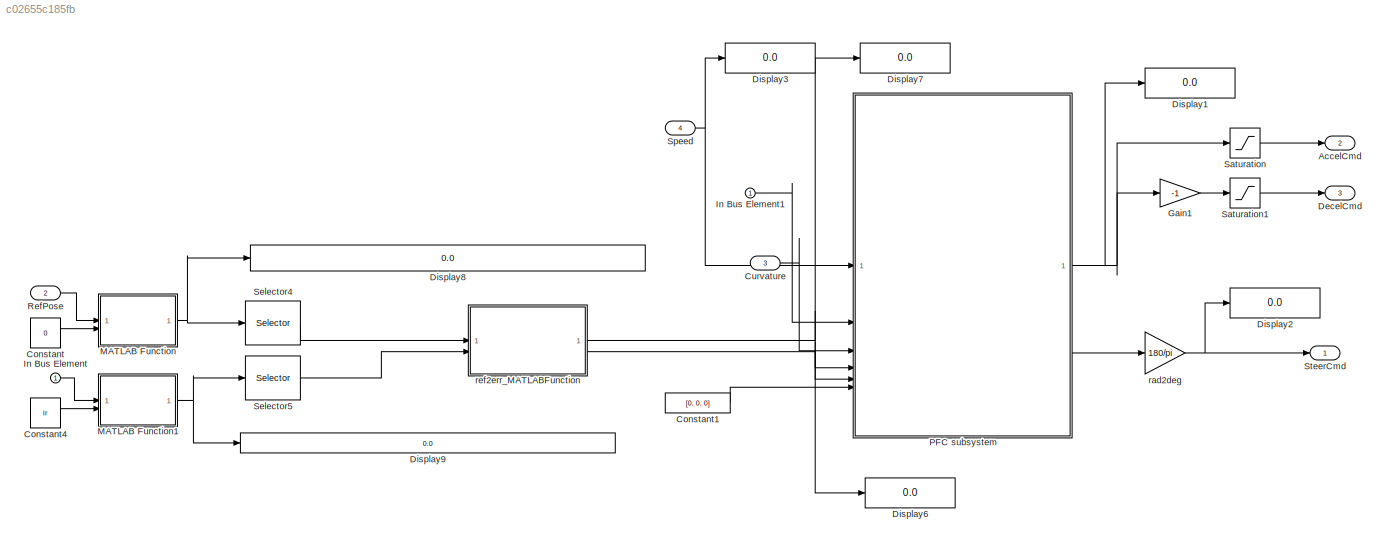
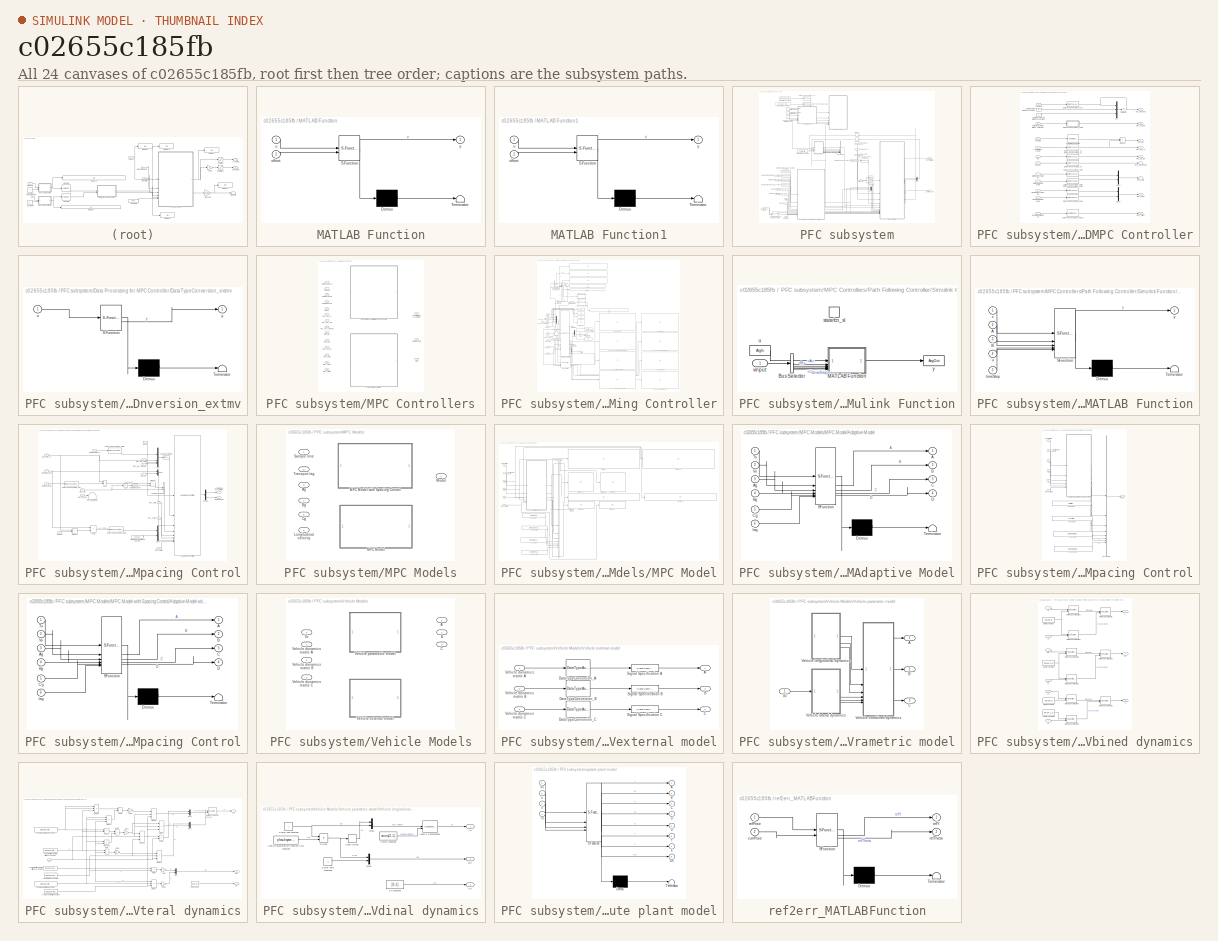
[diagram: thumbnail index - all 24 canvases of the model, root first then tree order]
MODEL slx_c02655c185fb
KIND model
CONFIG AbsTol = auto
CONFIG EnableMultiTasking = off
CONFIG FixedStep = auto
CONFIG MaxStep = auto
CONFIG MinStep = auto
CONFIG PreLoadFcn = load('pathFollowingUtil\pfcsubsystem_data.mat');\nload('pathFollowingUtil\mpc_base.mat');
CONFIG RelTol = 1e-3
CONFIG SampleTimeConstraint = Unconstrained
CONFIG SolverName = VariableStepAuto
CONFIG StartTime = 0.0
CONFIG StopTime = 10.0
BLOCK [Outport] AccelCmd
  Port = 2
BLOCK [Constant] Constant
  Value = 0
BLOCK [Constant] Constant1
  Value = [0, 0, 0]
BLOCK [Constant] Constant4
  Value = lr
BLOCK [Inport] Curvature
  Port = 3
  PortDimensions = [numReferencePose, 1]
BLOCK [Outport] DecelCmd
  Port = 3
BLOCK [Display] Display1
  Decimation = 1
BLOCK [Display] Display2
  Decimation = 1
BLOCK [Display] Display3
  Decimation = 1
BLOCK [Display] Display6
  Decimation = 1
BLOCK [Display] Display7
  Decimation = 1
BLOCK [Display] Display8
  Decimation = 1
BLOCK [Display] Display9
  Decimation = 1
BLOCK [Gain] Gain1
  Gain = -1
BLOCK [Inport] In Bus Element
BLOCK [Inport] In Bus Element1
BLOCK [SubSystem] MATLAB Function
  ErrorFcn = Stateflow.Translate.translate
  PermitHierarchicalResolution = ExplicitOnly
  SFBlockType = MATLAB Function
  TreatAsAtomicUnit = on
BLOCK [Demux] MATLAB Function/ Demux 
  Outputs = 1
BLOCK [S-Function] MATLAB Function/ SFunction 
  EnableBusSupport = on
  FunctionName = sf_sfun
  PortCounts = [2 2]
  SFcnIsStateOwnerBlock = off
  SFunctionDeploymentMode = off
  Tag = Stateflow S-Function 1
BLOCK [Terminator] MATLAB Function/ Terminator 
BLOCK [Inport] MATLAB Function/offset
  Port = 2
BLOCK [Inport] MATLAB Function/u
BLOCK [Outport] MATLAB Function/y
BLOCK [SubSystem] MATLAB Function1
  ErrorFcn = Stateflow.Translate.translate
  PermitHierarchicalResolution = ExplicitOnly
  SFBlockType = MATLAB Function
  TreatAsAtomicUnit = on
BLOCK [Demux] MATLAB Function1/ Demux 
  Outputs = 1
BLOCK [S-Function] MATLAB Function1/ SFunction 
  EnableBusSupport = on
  FunctionName = sf_sfun
  PortCounts = [2 2]
  SFcnIsStateOwnerBlock = off
  SFunctionDeploymentMode = off
  Tag = Stateflow S-Function 4
BLOCK [Terminator] MATLAB Function1/ Terminator 
BLOCK [Inport] MATLAB Function1/offset
  Port = 2
BLOCK [Inport] MATLAB Function1/u
BLOCK [Outport] MATLAB Function1/y
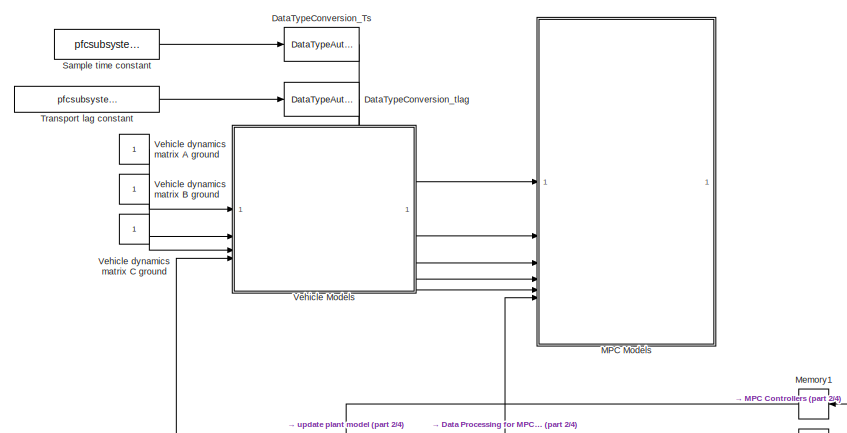
[diagram: PFC subsystem - part 1/4, top left region]
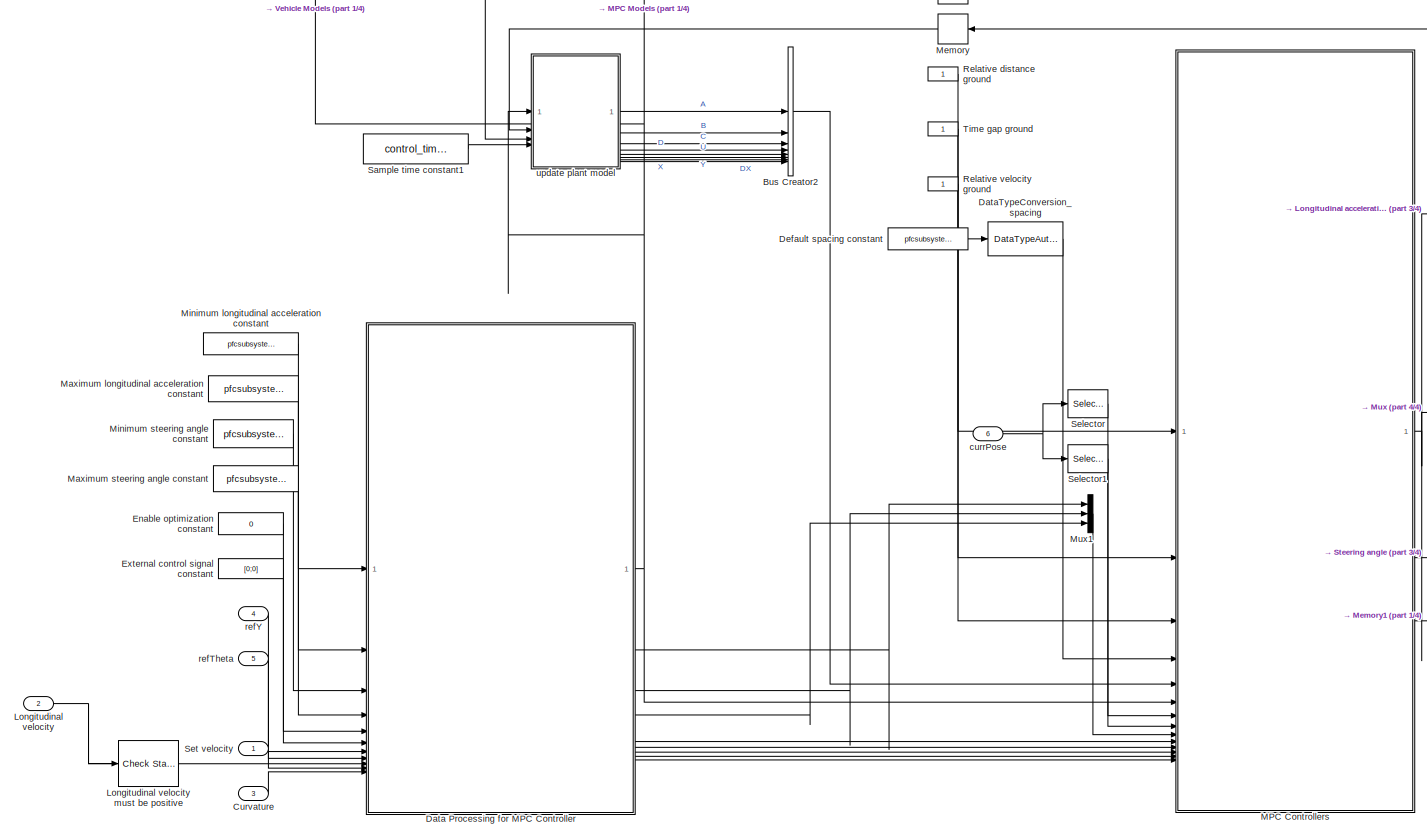
[diagram: PFC subsystem - part 2/4, full width, middle band]
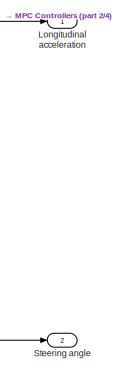
[diagram: PFC subsystem - part 3/4, middle right region]
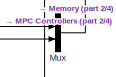
[diagram: PFC subsystem - part 4/4, bottom right region]
BLOCK [SubSystem] PFC subsystem
  LibrarySourceBlock = mpclib/Automated Driving/Path Following Control System
  RTWFileNameOpts = Use function name
  RTWSystemCode = Reusable function
  TreatAsAtomicUnit = on
  VariantControl = Variant2
BLOCK [BusCreator] PFC subsystem/Bus Creator2
  DisplayOption = bar
  InheritFromInputs = on
  Inputs = 8
BLOCK [Inport] PFC subsystem/Curvature
  Port = 3
BLOCK [SubSystem] PFC subsystem/Data Processing for MPC Controller
BLOCK [Inport] PFC subsystem/Data Processing for MPC Controller/Curvature
  Port = 11
BLOCK [Reference] PFC subsystem/Data Processing for MPC Controller/CurvatureConversion  REF=mpcsigdimcheck_private/CurvatureConversion
  SourceBlock = mpcsigdimcheck_private/CurvatureConversion
  SourceType = MPCCurvatureConversion
BLOCK [Reference] PFC subsystem/Data Processing for MPC Controller/DataTypeConversion_Vx  REF=mpcsigdimcheck_private/DataTypeAutoConversion
  SourceBlock = mpcsigdimcheck_private/DataTypeAutoConversion
  SourceType = MPCDataTypeAutoConversion
BLOCK [Reference] PFC subsystem/Data Processing for MPC Controller/DataTypeConversion_amax  REF=mpcsigdimcheck_private/DataTypeAutoConversion
  SourceBlock = mpcsigdimcheck_private/DataTypeAutoConversion
  SourceType = MPCDataTypeAutoConversion
BLOCK [Reference] PFC subsystem/Data Processing for MPC Controller/DataTypeConversion_amin  REF=mpcsigdimcheck_private/DataTypeAutoConversion
  SourceBlock = mpcsigdimcheck_private/DataTypeAutoConversion
  SourceType = MPCDataTypeAutoConversion
BLOCK [Reference] PFC subsystem/Data Processing for MPC Controller/DataTypeConversion_e1  REF=mpcsigdimcheck_private/DataTypeAutoConversion
  SourceBlock = mpcsigdimcheck_private/DataTypeAutoConversion
  SourceType = MPCDataTypeAutoConversion
BLOCK [Reference] PFC subsystem/Data Processing for MPC Controller/DataTypeConversion_e2  REF=mpcsigdimcheck_private/DataTypeAutoConversion
  SourceBlock = mpcsigdimcheck_private/DataTypeAutoConversion
  SourceType = MPCDataTypeAutoConversion
BLOCK [SubSystem] PFC subsystem/Data Processing for MPC Controller/DataTypeConversion_extmv
  ErrorFcn = Stateflow.Translate.translate
  PermitHierarchicalResolution = ExplicitOnly
  SFBlockType = MATLAB Function
  TreatAsAtomicUnit = on
BLOCK [Demux] PFC subsystem/Data Processing for MPC Controller/DataTypeConversion_extmv/ Demux 
  Outputs = 1
BLOCK [S-Function] PFC subsystem/Data Processing for MPC Controller/DataTypeConversion_extmv/ SFunction 
  EnableBusSupport = on
  FunctionName = sf_sfun
  Parameters = isDouble
  PortCounts = [1 2]
  SFcnIsStateOwnerBlock = off
  SFunctionDeploymentMode = off
  Tag = Stateflow S-Function 6
BLOCK [Terminator] PFC subsystem/Data Processing for MPC Controller/DataTypeConversion_extmv/ Terminator 
BLOCK [Inport] PFC subsystem/Data Processing for MPC Controller/DataTypeConversion_extmv/u
BLOCK [Outport] PFC subsystem/Data Processing for MPC Controller/DataTypeConversion_extmv/y
BLOCK [Reference] PFC subsystem/Data Processing for MPC Controller/DataTypeConversion_optsgn  REF=mpcsigdimcheck_private/EnablingConversion
  SourceBlock = mpcsigdimcheck_private/EnablingConversion
  SourceType = SubSystem
BLOCK [Reference] PFC subsystem/Data Processing for MPC Controller/DataTypeConversion_umax  REF=mpcsigdimcheck_private/DataTypeAutoConversion
  SourceBlock = mpcsigdimcheck_private/DataTypeAutoConversion
  SourceType = MPCDataTypeAutoConversion
BLOCK [Reference] PFC subsystem/Data Processing for MPC Controller/DataTypeConversion_umin  REF=mpcsigdimcheck_private/DataTypeAutoConversion
  SourceBlock = mpcsigdimcheck_private/DataTypeAutoConversion
  SourceType = MPCDataTypeAutoConversion
BLOCK [Reference] PFC subsystem/Data Processing for MPC Controller/DataTypeConversion_vset  REF=mpcsigdimcheck_private/DataTypeAutoConversion
  SourceBlock = mpcsigdimcheck_private/DataTypeAutoConversion
  SourceType = MPCDataTypeAutoConversion
BLOCK [Inport] PFC subsystem/Data Processing for MPC Controller/Enabling optimization
  Port = 5
BLOCK [Constant] PFC subsystem/Data Processing for MPC Controller/Lateral deviation reference constant
  OutDataTypeStr = pfcsubsystem_data.DataType
  Value = 0
BLOCK [Inport] PFC subsystem/Data Processing for MPC Controller/Longitudinal velocity
  Port = 9
BLOCK [Inport] PFC subsystem/Data Processing for MPC Controller/Maximum acceleration
  Port = 2
BLOCK [Inport] PFC subsystem/Data Processing for MPC Controller/Maximum steering angle
  Port = 4
BLOCK [Inport] PFC subsystem/Data Processing for MPC Controller/Minimum acceleration
BLOCK [Inport] PFC subsystem/Data Processing for MPC Controller/Minimum steering angle
  Port = 3
BLOCK [Mux] PFC subsystem/Data Processing for MPC Controller/Mux
  DisplayOption = bar
  Inputs = 3
BLOCK [Mux] PFC subsystem/Data Processing for MPC Controller/Mux3
  DisplayOption = bar
  Inputs = 2
BLOCK [Mux] PFC subsystem/Data Processing for MPC Controller/Mux5
  DisplayOption = bar
  Inputs = 2
BLOCK [Product] PFC subsystem/Data Processing for MPC Controller/Product
BLOCK [Constant] PFC subsystem/Data Processing for MPC Controller/Relative yaw angle reference constant 
  OutDataTypeStr = pfcsubsystem_data.DataType
  Value = 0
BLOCK [Inport] PFC subsystem/Data Processing for MPC Controller/Set velocity
  Port = 10
BLOCK [Inport] PFC subsystem/Data Processing for MPC Controller/Switching controller with bumpless transfer
  Port = 6
BLOCK [Terminator] PFC subsystem/Data Processing for MPC Controller/Terminator
BLOCK [Outport] PFC subsystem/Data Processing for MPC Controller/mpc_ext_mv
  Port = 6
  VectorParamsAs1DForOutWhenUnconnected = off
BLOCK [Outport] PFC subsystem/Data Processing for MPC Controller/mpc_md
  Port = 5
  VectorParamsAs1DForOutWhenUnconnected = off
BLOCK [Outport] PFC subsystem/Data Processing for MPC Controller/mpc_mo_Vx
  VectorParamsAs1DForOutWhenUnconnected = off
BLOCK [Outport] PFC subsystem/Data Processing for MPC Controller/mpc_mo_refTheta
  Port = 4
  VectorParamsAs1DForOutWhenUnconnected = off
BLOCK [Outport] PFC subsystem/Data Processing for MPC Controller/mpc_mo_refY
  Port = 3
  VectorParamsAs1DForOutWhenUnconnected = off
BLOCK [Outport] PFC subsystem/Data Processing for MPC Controller/mpc_refSpeed
  Port = 2
  VectorParamsAs1DForOutWhenUnconnected = off
BLOCK [Outport] PFC subsystem/Data Processing for MPC Controller/mpc_switch
  Port = 9
  VectorParamsAs1DForOutWhenUnconnected = off
BLOCK [Outport] PFC subsystem/Data Processing for MPC Controller/mpc_umax
  Port = 8
  VectorParamsAs1DForOutWhenUnconnected = off
BLOCK [Outport] PFC subsystem/Data Processing for MPC Controller/mpc_umin
  Port = 7
  VectorParamsAs1DForOutWhenUnconnected = off
BLOCK [Inport] PFC subsystem/Data Processing for MPC Controller/refTheta
  Port = 8
BLOCK [Inport] PFC subsystem/Data Processing for MPC Controller/refY
  Port = 7
BLOCK [Reference] PFC subsystem/DataTypeConversion_Ts  REF=mpcsigdimcheck_private/DataTypeAutoConversion
  SourceBlock = mpcsigdimcheck_private/DataTypeAutoConversion
  SourceType = MPCDataTypeAutoConversion
BLOCK [Reference] PFC subsystem/DataTypeConversion_spacing  REF=mpcsigdimcheck_private/DataTypeAutoConversion
  SourceBlock = mpcsigdimcheck_private/DataTypeAutoConversion
  SourceType = MPCDataTypeAutoConversion
BLOCK [Reference] PFC subsystem/DataTypeConversion_tlag  REF=mpcsigdimcheck_private/DataTypeAutoConversion
  SourceBlock = mpcsigdimcheck_private/DataTypeAutoConversion
  SourceType = MPCDataTypeAutoConversion
BLOCK [Constant] PFC subsystem/Default spacing constant
  OutDataTypeStr = pfcsubsystem_data.DataType
  Value = pfcsubsystem_data.DefaultSpacing
BLOCK [Constant] PFC subsystem/Enable optimization constant
  OutDataTypeStr = pfcsubsystem_data.DataType
  Value = 0
BLOCK [Constant] PFC subsystem/External control signal constant
  OutDataTypeStr = pfcsubsystem_data.DataType
  Value = [0;0]
  VectorParams1D = off
BLOCK [Outport] PFC subsystem/Longitudinal acceleration
  PortDimensions = 1
  SamplingMode = Sample based
  SignalType = real
  VectorParamsAs1DForOutWhenUnconnected = off
BLOCK [Inport] PFC subsystem/Longitudinal velocity
  Port = 2
BLOCK [Reference] PFC subsystem/Longitudinal velocity must be positive  REF=simulink/Model
Verification/Check Static 
Lower Bound
  Description = 0 < u
  SourceBlock = simulink/Model\nVerification/Check Static \nLower Bound
  SourceType = Checks_SMin
BLOCK [SubSystem] PFC subsystem/MPC Controllers
  LabelModeActiveChoice = pathFollowingNoSpacingCtrl
  Variant = on
  VariantControl = Variant1
  VariantControlMode = label
BLOCK [Outport] PFC subsystem/MPC Controllers/  Steering angle
  Port = 2
  VectorParamsAs1DForOutWhenUnconnected = off
BLOCK [Outport] PFC subsystem/MPC Controllers/ Longitudinal acceleration
  VectorParamsAs1DForOutWhenUnconnected = off
BLOCK [Inport] PFC subsystem/MPC Controllers/Default spacing 
  Port = 4
BLOCK [Inport] PFC subsystem/MPC Controllers/Model 
  Port = 5
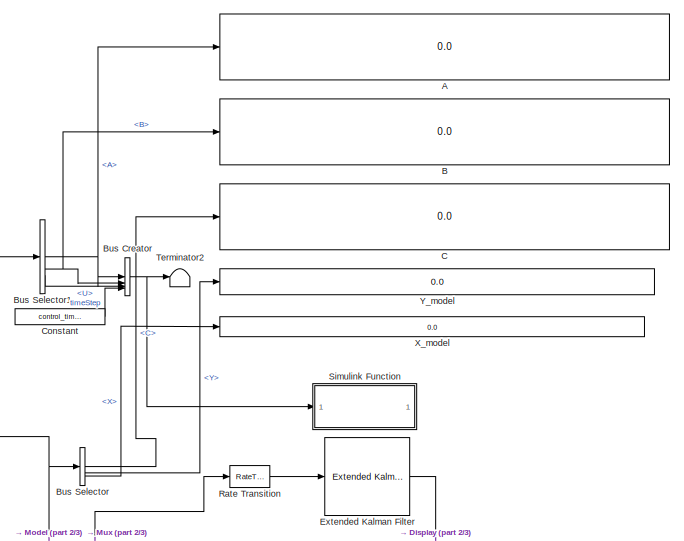
[diagram: PFC subsystem/MPC Controllers/Path Following Controller - part 1/3, top left region]
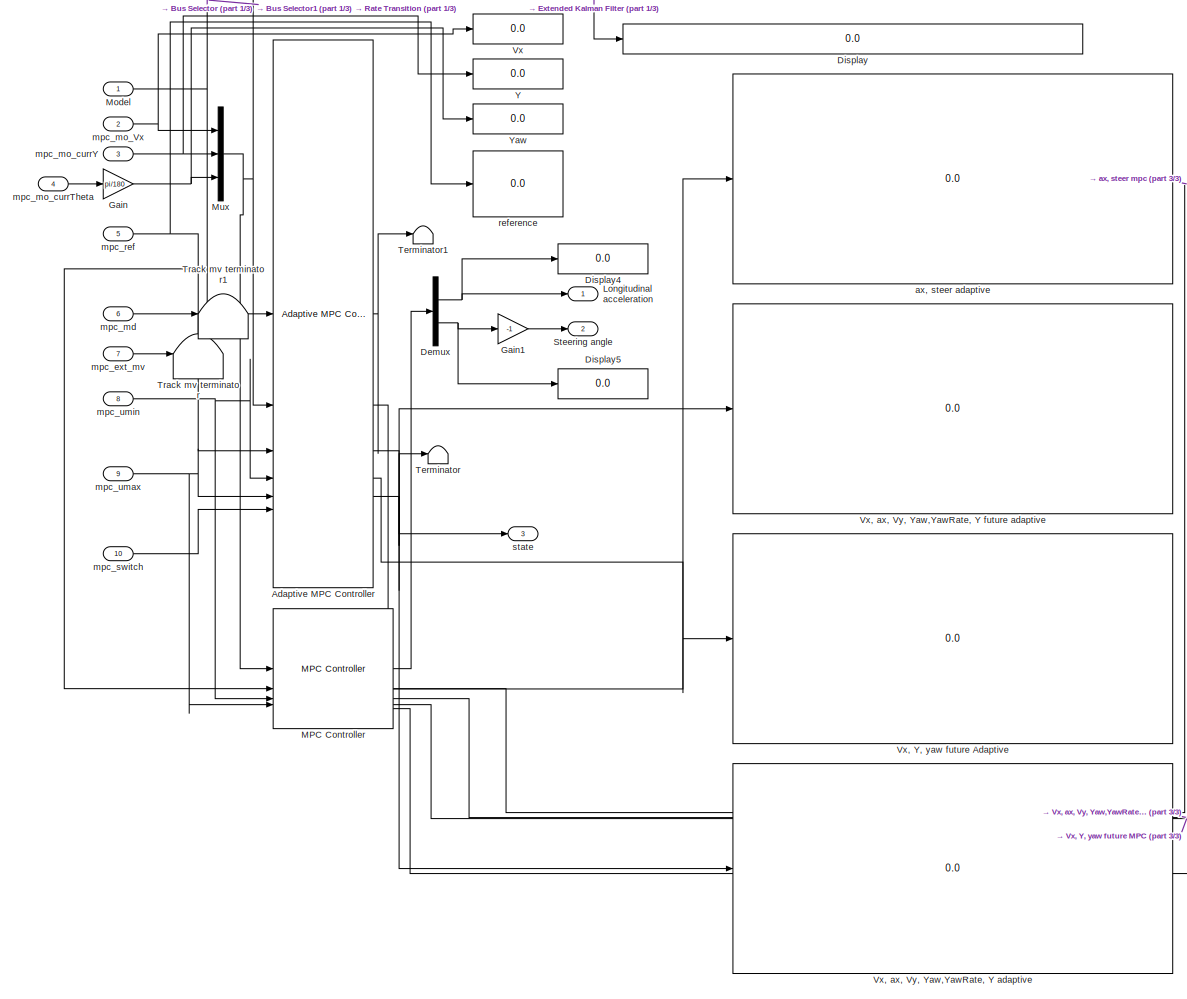
[diagram: PFC subsystem/MPC Controllers/Path Following Controller - part 2/3, bottom center region]
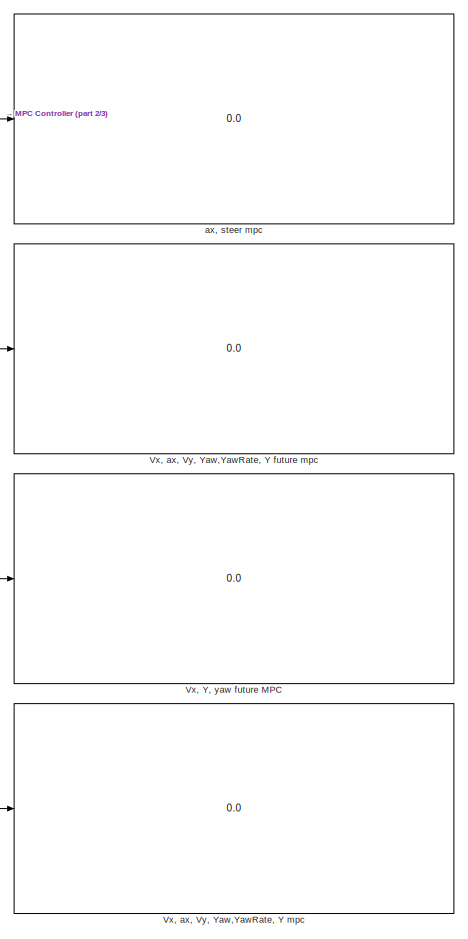
[diagram: PFC subsystem/MPC Controllers/Path Following Controller - part 3/3, bottom right region]
BLOCK [SubSystem] PFC subsystem/MPC Controllers/Path Following Controller
  VariantControl = pathFollowingNoSpacingCtrl
BLOCK [SubSystem] PFC subsystem/MPC Controllers/Path Following Controller with Spacing Control
  VariantControl = pathFollowingHasSpacingCtrl
BLOCK [Outport] PFC subsystem/MPC Controllers/Path Following Controller with Spacing Control/ Steering angle
  Port = 2
  Unit = rad
  VectorParamsAs1DForOutWhenUnconnected = off
BLOCK [Abs] PFC subsystem/MPC Controllers/Path Following Controller with Spacing Control/Abs
  SaturateOnIntegerOverflow = off
  ZeroCross = off
BLOCK [Reference] PFC subsystem/MPC Controllers/Path Following Controller with Spacing Control/Adaptive MPC Controller  REF=mpclib/Adaptive MPC Controller  (lib defined in mdl_ae329e0e0455)
  SCDEnableBlockLinearizationSpecification = on
  SourceBlock = mpclib/Adaptive MPC Controller
  SourceType = Adaptive MPC
BLOCK [Reference] PFC subsystem/MPC Controllers/Path Following Controller with Spacing Control/Compare To Zero  REF=simulink/Logic and Bit
Operations/Compare
To Zero
  SourceBlock = simulink/Logic and Bit\nOperations/Compare\nTo Zero
  SourceType = Compare To Zero
BLOCK [Reference] PFC subsystem/MPC Controllers/Path Following Controller with Spacing Control/DataTypeConversion_dmin  REF=mpcsigdimcheck_private/DataTypeAutoConversion
  SourceBlock = mpcsigdimcheck_private/DataTypeAutoConversion
  SourceType = MPCDataTypeAutoConversion
BLOCK [Reference] PFC subsystem/MPC Controllers/Path Following Controller with Spacing Control/DataTypeConversion_reldist  REF=mpcsigdimcheck_private/DataTypeAutoConversion
  SourceBlock = mpcsigdimcheck_private/DataTypeAutoConversion
  SourceType = MPCDataTypeAutoConversion
BLOCK [Reference] PFC subsystem/MPC Controllers/Path Following Controller with Spacing Control/DataTypeConversion_vrel  REF=mpcsigdimcheck_private/DataTypeAutoConversion
  SourceBlock = mpcsigdimcheck_private/DataTypeAutoConversion
  SourceType = MPCDataTypeAutoConversion
BLOCK [Inport] PFC subsystem/MPC Controllers/Path Following Controller with Spacing Control/Default spacing
  Port = 4
BLOCK [Demux] PFC subsystem/MPC Controllers/Path Following Controller with Spacing Control/Demux
  Outputs = 2
BLOCK [Outport] PFC subsystem/MPC Controllers/Path Following Controller with Spacing Control/Longitudinal acceleration
  Unit = m/s^2
  VectorParamsAs1DForOutWhenUnconnected = off
BLOCK [Inport] PFC subsystem/MPC Controllers/Path Following Controller with Spacing Control/Model
  Port = 5
BLOCK [Mux] PFC subsystem/MPC Controllers/Path Following Controller with Spacing Control/Mux
  DisplayOption = bar
BLOCK [Mux] PFC subsystem/MPC Controllers/Path Following Controller with Spacing Control/Mux1
  DisplayOption = bar
  Inputs = 2
BLOCK [Mux] PFC subsystem/MPC Controllers/Path Following Controller with Spacing Control/Mux2
  DisplayOption = bar
  Inputs = 2
BLOCK [Product] PFC subsystem/MPC Controllers/Path Following Controller with Spacing Control/Product
BLOCK [Product] PFC subsystem/MPC Controllers/Path Following Controller with Spacing Control/Product2
BLOCK [Inport] PFC subsystem/MPC Controllers/Path Following Controller with Spacing Control/Relative distance
  Unit = m
BLOCK [Inport] PFC subsystem/MPC Controllers/Path Following Controller with Spacing Control/Relative velocity
  Port = 3
  Unit = m/s
BLOCK [SignalSpecification] PFC subsystem/MPC Controllers/Path Following Controller with Spacing Control/Signal Specification
  Dimensions = 4
BLOCK [Sum] PFC subsystem/MPC Controllers/Path Following Controller with Spacing Control/Sum
  IconShape = rectangular
BLOCK [Sum] PFC subsystem/MPC Controllers/Path Following Controller with Spacing Control/Sum1
  IconShape = rectangular
BLOCK [Inport] PFC subsystem/MPC Controllers/Path Following Controller with Spacing Control/Time gap
  Port = 2
BLOCK [Terminator] PFC subsystem/MPC Controllers/Path Following Controller with Spacing Control/Track mv terminator
BLOCK [Concatenate] PFC subsystem/MPC Controllers/Path Following Controller with Spacing Control/Vector Concatenate
  ConcatenateDimension = 2
  Mode = Multidimensional array
BLOCK [Constant] PFC subsystem/MPC Controllers/Path Following Controller with Spacing Control/Ymin(2:4) unconstrained constant
  OutDataTypeStr = pfcsubsystem_data.DataType
  Value = zeros(3,1)
  VectorParams1D = off
BLOCK [Inport] PFC subsystem/MPC Controllers/Path Following Controller with Spacing Control/mpc_ext_mv
  Port = 11
BLOCK [Inport] PFC subsystem/MPC Controllers/Path Following Controller with Spacing Control/mpc_md
  Port = 10
BLOCK [Inport] PFC subsystem/MPC Controllers/Path Following Controller with Spacing Control/mpc_mo_Vx
  Port = 6
BLOCK [Inport] PFC subsystem/MPC Controllers/Path Following Controller with Spacing Control/mpc_mo_currTheta
  Port = 8
BLOCK [Inport] PFC subsystem/MPC Controllers/Path Following Controller with Spacing Control/mpc_mo_currY
  Port = 7
BLOCK [Inport] PFC subsystem/MPC Controllers/Path Following Controller with Spacing Control/mpc_ref
  Port = 9
BLOCK [Inport] PFC subsystem/MPC Controllers/Path Following Controller with Spacing Control/mpc_switch
  Port = 14
BLOCK [Inport] PFC subsystem/MPC Controllers/Path Following Controller with Spacing Control/mpc_umax
  Port = 13
BLOCK [Inport] PFC subsystem/MPC Controllers/Path Following Controller with Spacing Control/mpc_umin
  Port = 12
BLOCK [Outport] PFC subsystem/MPC Controllers/Path Following Controller/ Steering angle
  Port = 2
  Unit = rad
  VectorParamsAs1DForOutWhenUnconnected = off
BLOCK [Display] PFC subsystem/MPC Controllers/Path Following Controller/A
  Decimation = 1
BLOCK [Reference] PFC subsystem/MPC Controllers/Path Following Controller/Adaptive MPC Controller  REF=mpclib/Adaptive MPC Controller  (lib defined in mdl_ae329e0e0455)
  SCDEnableBlockLinearizationSpecification = on
  SourceBlock = mpclib/Adaptive MPC Controller
  SourceType = Adaptive MPC
BLOCK [Display] PFC subsystem/MPC Controllers/Path Following Controller/B
  Decimation = 1
BLOCK [BusCreator] PFC subsystem/MPC Controllers/Path Following Controller/Bus Creator
  DisplayOption = bar
  InheritFromInputs = on
  Inputs = 4
BLOCK [BusSelector] PFC subsystem/MPC Controllers/Path Following Controller/Bus Selector
  OutputSignals = C,Y,X
BLOCK [BusSelector] PFC subsystem/MPC Controllers/Path Following Controller/Bus Selector1
  OutputSignals = A,B,U
BLOCK [Display] PFC subsystem/MPC Controllers/Path Following Controller/C
  Decimation = 1
BLOCK [Constant] PFC subsystem/MPC Controllers/Path Following Controller/Constant
  Value = control_timeStep
BLOCK [Demux] PFC subsystem/MPC Controllers/Path Following Controller/Demux
  Outputs = 2
BLOCK [Display] PFC subsystem/MPC Controllers/Path Following Controller/Display
  Decimation = 1
BLOCK [Display] PFC subsystem/MPC Controllers/Path Following Controller/Display4
  Decimation = 1
BLOCK [Display] PFC subsystem/MPC Controllers/Path Following Controller/Display5
  Decimation = 1
BLOCK [Reference] PFC subsystem/MPC Controllers/Path Following Controller/Extended Kalman Filter  REF=sharedTrackingLibrary/Extended Kalman Filter
  LibrarySourceBlock = cstblocks/State Estimation/Extended Kalman Filter
  SourceBlock = sharedTrackingLibrary/Extended Kalman Filter
  SourceType = Extended Kalman Filter
BLOCK [Gain] PFC subsystem/MPC Controllers/Path Following Controller/Gain
  Gain = pi/180
BLOCK [Gain] PFC subsystem/MPC Controllers/Path Following Controller/Gain1
  Gain = -1
BLOCK [Outport] PFC subsystem/MPC Controllers/Path Following Controller/Longitudinal acceleration
  Unit = m/s^2
  VectorParamsAs1DForOutWhenUnconnected = off
BLOCK [Reference] PFC subsystem/MPC Controllers/Path Following Controller/MPC Controller  REF=mpclib/MPC Controller  (lib defined in mdl_ae329e0e0455)
  SCDEnableBlockLinearizationSpecification = on
  SourceBlock = mpclib/MPC Controller
  SourceType = MPC
BLOCK [Inport] PFC subsystem/MPC Controllers/Path Following Controller/Model
BLOCK [Mux] PFC subsystem/MPC Controllers/Path Following Controller/Mux
  DisplayOption = bar
  Inputs = 3
BLOCK [RateTransition] PFC subsystem/MPC Controllers/Path Following Controller/Rate Transition
  OutPortSampleTime = control_timeStep
BLOCK [SubSystem] PFC subsystem/MPC Controllers/Path Following Controller/Simulink Function
  TreatAsAtomicUnit = on
BLOCK [BusSelector] PFC subsystem/MPC Controllers/Path Following Controller/Simulink Function/Bus Selector
  OutputSignals = A,B,U,timeStep
BLOCK [SubSystem] PFC subsystem/MPC Controllers/Path Following Controller/Simulink Function/MATLAB Function
  ErrorFcn = Stateflow.Translate.translate
  PermitHierarchicalResolution = ExplicitOnly
  SFBlockType = MATLAB Function
  TreatAsAtomicUnit = on
BLOCK [Demux] PFC subsystem/MPC Controllers/Path Following Controller/Simulink Function/MATLAB Function/ Demux 
  Outputs = 1
BLOCK [S-Function] PFC subsystem/MPC Controllers/Path Following Controller/Simulink Function/MATLAB Function/ SFunction 
  EnableBusSupport = on
  FunctionName = sf_sfun
  PortCounts = [5 2]
  SFcnIsStateOwnerBlock = off
  SFunctionDeploymentMode = off
  Tag = Stateflow S-Function 8
BLOCK [Terminator] PFC subsystem/MPC Controllers/Path Following Controller/Simulink Function/MATLAB Function/ Terminator 
BLOCK [Inport] PFC subsystem/MPC Controllers/Path Following Controller/Simulink Function/MATLAB Function/A
  Port = 2
BLOCK [Inport] PFC subsystem/MPC Controllers/Path Following Controller/Simulink Function/MATLAB Function/B
  Port = 3
BLOCK [Inport] PFC subsystem/MPC Controllers/Path Following Controller/Simulink Function/MATLAB Function/timeStep
  Port = 5
BLOCK [Inport] PFC subsystem/MPC Controllers/Path Following Controller/Simulink Function/MATLAB Function/u
  Port = 4
BLOCK [Inport] PFC subsystem/MPC Controllers/Path Following Controller/Simulink Function/MATLAB Function/x
BLOCK [Outport] PFC subsystem/MPC Controllers/Path Following Controller/Simulink Function/MATLAB Function/y
BLOCK [TriggerPort] PFC subsystem/MPC Controllers/Path Following Controller/Simulink Function/statefcn_sl
  FunctionName = statefcn_sl
  FunctionVisibility = scoped
  IsSimulinkFunction = on
  StatesWhenEnabling = held
  TriggerType = function-call
  VariantControl = (inherit)
BLOCK [ArgIn] PFC subsystem/MPC Controllers/Path Following Controller/Simulink Function/u
  ArgumentName = u
  DisableCoverage = on
  PortDimensions = [6, 1]
BLOCK [Inport] PFC subsystem/MPC Controllers/Path Following Controller/Simulink Function/vinput
BLOCK [ArgOut] PFC subsystem/MPC Controllers/Path Following Controller/Simulink Function/y
  ArgumentName = y
  DisableCoverage = on
  PortDimensions = [6, 1]
BLOCK [Terminator] PFC subsystem/MPC Controllers/Path Following Controller/Terminator
BLOCK [Terminator] PFC subsystem/MPC Controllers/Path Following Controller/Terminator1
BLOCK [Terminator] PFC subsystem/MPC Controllers/Path Following Controller/Terminator2
BLOCK [Terminator] PFC subsystem/MPC Controllers/Path Following Controller/Track mv terminator
BLOCK [Terminator] PFC subsystem/MPC Controllers/Path Following Controller/Track mv terminator1
BLOCK [Display] PFC subsystem/MPC Controllers/Path Following Controller/Vx
  Decimation = 1
BLOCK [Display] PFC subsystem/MPC Controllers/Path Following Controller/Vx, Y, yaw future Adaptive
  Decimation = 1
BLOCK [Display] PFC subsystem/MPC Controllers/Path Following Controller/Vx, Y, yaw future MPC
  Decimation = 1
BLOCK [Display] PFC subsystem/MPC Controllers/Path Following Controller/Vx, ax, Vy, Yaw,YawRate, Y adaptive
  Decimation = 1
BLOCK [Display] PFC subsystem/MPC Controllers/Path Following Controller/Vx, ax, Vy, Yaw,YawRate, Y future adaptive
  Decimation = 1
BLOCK [Display] PFC subsystem/MPC Controllers/Path Following Controller/Vx, ax, Vy, Yaw,YawRate, Y future mpc
  Decimation = 1
BLOCK [Display] PFC subsystem/MPC Controllers/Path Following Controller/Vx, ax, Vy, Yaw,YawRate, Y mpc
  Decimation = 1
BLOCK [Display] PFC subsystem/MPC Controllers/Path Following Controller/X_model
  Decimation = 1
BLOCK [Display] PFC subsystem/MPC Controllers/Path Following Controller/Y
  Decimation = 1
BLOCK [Display] PFC subsystem/MPC Controllers/Path Following Controller/Y_model
  Decimation = 1
BLOCK [Display] PFC subsystem/MPC Controllers/Path Following Controller/Yaw
  Decimation = 1
BLOCK [Display] PFC subsystem/MPC Controllers/Path Following Controller/ax, steer adaptive
  Decimation = 1
BLOCK [Display] PFC subsystem/MPC Controllers/Path Following Controller/ax, steer mpc
  Decimation = 1
BLOCK [Inport] PFC subsystem/MPC Controllers/Path Following Controller/mpc_ext_mv
  Port = 7
BLOCK [Inport] PFC subsystem/MPC Controllers/Path Following Controller/mpc_md
  Port = 6
BLOCK [Inport] PFC subsystem/MPC Controllers/Path Following Controller/mpc_mo_Vx
  Port = 2
BLOCK [Inport] PFC subsystem/MPC Controllers/Path Following Controller/mpc_mo_currTheta
  Port = 4
BLOCK [Inport] PFC subsystem/MPC Controllers/Path Following Controller/mpc_mo_currY
  Port = 3
BLOCK [Inport] PFC subsystem/MPC Controllers/Path Following Controller/mpc_ref
  Port = 5
BLOCK [Inport] PFC subsystem/MPC Controllers/Path Following Controller/mpc_switch
  Port = 10
BLOCK [Inport] PFC subsystem/MPC Controllers/Path Following Controller/mpc_umax
  Port = 9
BLOCK [Inport] PFC subsystem/MPC Controllers/Path Following Controller/mpc_umin
  Port = 8
BLOCK [Display] PFC subsystem/MPC Controllers/Path Following Controller/reference
  Decimation = 1
BLOCK [Outport] PFC subsystem/MPC Controllers/Path Following Controller/state
  Port = 3
BLOCK [Inport] PFC subsystem/MPC Controllers/Relative distance 
BLOCK [Inport] PFC subsystem/MPC Controllers/Relative velocity 
  Port = 3
BLOCK [Inport] PFC subsystem/MPC Controllers/Time gap 
  Port = 2
BLOCK [Inport] PFC subsystem/MPC Controllers/mpc_ext_mv 
  Port = 11
BLOCK [Inport] PFC subsystem/MPC Controllers/mpc_md 
  Port = 10
BLOCK [Inport] PFC subsystem/MPC Controllers/mpc_mo_Vx 
  Port = 6
BLOCK [Inport] PFC subsystem/MPC Controllers/mpc_mo_currTheta
  Port = 8
BLOCK [Inport] PFC subsystem/MPC Controllers/mpc_mo_currY
  Port = 7
BLOCK [Inport] PFC subsystem/MPC Controllers/mpc_ref 
  Port = 9
BLOCK [Inport] PFC subsystem/MPC Controllers/mpc_switch 
  Port = 14
BLOCK [Inport] PFC subsystem/MPC Controllers/mpc_umax 
  Port = 13
BLOCK [Inport] PFC subsystem/MPC Controllers/mpc_umin 
  Port = 12
BLOCK [Outport] PFC subsystem/MPC Controllers/state
  Port = 3
BLOCK [SubSystem] PFC subsystem/MPC Models
  LabelModeActiveChoice = pathFollowingNoSpacingCtrl
  Variant = on
  VariantControl = Variant1
  VariantControlMode = label
BLOCK [Outport] PFC subsystem/MPC Models/ Model
  VectorParamsAs1DForOutWhenUnconnected = off
BLOCK [Inport] PFC subsystem/MPC Models/Ag
  Port = 3
BLOCK [Inport] PFC subsystem/MPC Models/Bg
  Port = 4
BLOCK [Inport] PFC subsystem/MPC Models/Cg
  Port = 5
BLOCK [Inport] PFC subsystem/MPC Models/Longitudinal velocity 
  Port = 6
BLOCK [SubSystem] PFC subsystem/MPC Models/MPC Model
  VariantControl = pathFollowingNoSpacingCtrl
BLOCK [SubSystem] PFC subsystem/MPC Models/MPC Model with Spacing Control
  VariantControl = pathFollowingHasSpacingCtrl
BLOCK [SubSystem] PFC subsystem/MPC Models/MPC Model with Spacing Control/Adaptive Model with Spacing Control
  ErrorFcn = Stateflow.Translate.translate
  PermitHierarchicalResolution = ExplicitOnly
  SFBlockType = MATLAB Function
  TreatAsAtomicUnit = on
BLOCK [Demux] PFC subsystem/MPC Models/MPC Model with Spacing Control/Adaptive Model with Spacing Control/ Demux 
  Outputs = 1
BLOCK [S-Function] PFC subsystem/MPC Models/MPC Model with Spacing Control/Adaptive Model with Spacing Control/ SFunction 
  EnableBusSupport = off
  FunctionName = sf_sfun
  PortCounts = [6 5]
  SFcnIsStateOwnerBlock = off
  SFunctionDeploymentMode = off
  Tag = Stateflow S-Function 3
BLOCK [Terminator] PFC subsystem/MPC Models/MPC Model with Spacing Control/Adaptive Model with Spacing Control/ Terminator 
BLOCK [Outport] PFC subsystem/MPC Models/MPC Model with Spacing Control/Adaptive Model with Spacing Control/A
  VectorParamsAs1DForOutWhenUnconnected = off
BLOCK [Inport] PFC subsystem/MPC Models/MPC Model with Spacing Control/Adaptive Model with Spacing Control/Ag
  Port = 3
BLOCK [Outport] PFC subsystem/MPC Models/MPC Model with Spacing Control/Adaptive Model with Spacing Control/B
  Port = 2
  VectorParamsAs1DForOutWhenUnconnected = off
BLOCK [Inport] PFC subsystem/MPC Models/MPC Model with Spacing Control/Adaptive Model with Spacing Control/Bg
  Port = 4
BLOCK [Outport] PFC subsystem/MPC Models/MPC Model with Spacing Control/Adaptive Model with Spacing Control/C
  Port = 3
  VectorParamsAs1DForOutWhenUnconnected = off
BLOCK [Inport] PFC subsystem/MPC Models/MPC Model with Spacing Control/Adaptive Model with Spacing Control/Cg
  Port = 5
BLOCK [Outport] PFC subsystem/MPC Models/MPC Model with Spacing Control/Adaptive Model with Spacing Control/D
  Port = 4
  VectorParamsAs1DForOutWhenUnconnected = off
BLOCK [Inport] PFC subsystem/MPC Models/MPC Model with Spacing Control/Adaptive Model with Spacing Control/Ts
BLOCK [Inport] PFC subsystem/MPC Models/MPC Model with Spacing Control/Adaptive Model with Spacing Control/Vx
  Port = 2
BLOCK [Inport] PFC subsystem/MPC Models/MPC Model with Spacing Control/Adaptive Model with Spacing Control/lag
  Port = 6
BLOCK [Inport] PFC subsystem/MPC Models/MPC Model with Spacing Control/Ag
  Port = 4
BLOCK [Inport] PFC subsystem/MPC Models/MPC Model with Spacing Control/Bg
  Port = 5
BLOCK [BusCreator] PFC subsystem/MPC Models/MPC Model with Spacing Control/Bus Creator2
  DisplayOption = bar
  InheritFromInputs = on
  Inputs = 8
BLOCK [Inport] PFC subsystem/MPC Models/MPC Model with Spacing Control/Cg
  Port = 6
BLOCK [Constant] PFC subsystem/MPC Models/MPC Model with Spacing Control/DX Constant
  OutDataTypeStr = pfcsubsystem_data.DataType
  Value = zeros(NumEgoStates+3+4*hasLag,1)
  VectorParams1D = off
BLOCK [Inport] PFC subsystem/MPC Models/MPC Model with Spacing Control/Longitudinal velocity
  Port = 3
BLOCK [Outport] PFC subsystem/MPC Models/MPC Model with Spacing Control/Model
  VectorParamsAs1DForOutWhenUnconnected = off
BLOCK [Inport] PFC subsystem/MPC Models/MPC Model with Spacing Control/Sample time
BLOCK [Inport] PFC subsystem/MPC Models/MPC Model with Spacing Control/Transport lag
  Port = 2
BLOCK [Constant] PFC subsystem/MPC Models/MPC Model with Spacing Control/U Constant
  OutDataTypeStr = pfcsubsystem_data.DataType
  Value = [0;0;InitialLongVel;0]
  VectorParams1D = off
BLOCK [Constant] PFC subsystem/MPC Models/MPC Model with Spacing Control/X Constant
  OutDataTypeStr = pfcsubsystem_data.DataType
  Value = zeros(NumEgoStates+3+4*hasLag,1)
  VectorParams1D = off
BLOCK [Constant] PFC subsystem/MPC Models/MPC Model with Spacing Control/Y Constant
  OutDataTypeStr = pfcsubsystem_data.DataType
  Value = [1.4*InitialLongVel+DefaultSpacing;InitialLongVel;0;0]
  VectorParams1D = off
BLOCK [SubSystem] PFC subsystem/MPC Models/MPC Model/Adaptive Model
  ErrorFcn = Stateflow.Translate.translate
  PermitHierarchicalResolution = ExplicitOnly
  SFBlockType = MATLAB Function
  TreatAsAtomicUnit = on
BLOCK [Demux] PFC subsystem/MPC Models/MPC Model/Adaptive Model/ Demux 
  Outputs = 1
BLOCK [S-Function] PFC subsystem/MPC Models/MPC Model/Adaptive Model/ SFunction 
  EnableBusSupport = on
  FunctionName = sf_sfun
  PortCounts = [6 5]
  SFcnIsStateOwnerBlock = off
  SFunctionDeploymentMode = off
  Tag = Stateflow S-Function 2
BLOCK [Terminator] PFC subsystem/MPC Models/MPC Model/Adaptive Model/ Terminator 
BLOCK [Outport] PFC subsystem/MPC Models/MPC Model/Adaptive Model/A
  VectorParamsAs1DForOutWhenUnconnected = off
BLOCK [Inport] PFC subsystem/MPC Models/MPC Model/Adaptive Model/Ag
  Port = 3
BLOCK [Outport] PFC subsystem/MPC Models/MPC Model/Adaptive Model/B
  Port = 2
  VectorParamsAs1DForOutWhenUnconnected = off
BLOCK [Inport] PFC subsystem/MPC Models/MPC Model/Adaptive Model/Bg
  Port = 4
BLOCK [Outport] PFC subsystem/MPC Models/MPC Model/Adaptive Model/C
  Port = 3
  VectorParamsAs1DForOutWhenUnconnected = off
BLOCK [Inport] PFC subsystem/MPC Models/MPC Model/Adaptive Model/Cg
  Port = 5
BLOCK [Outport] PFC subsystem/MPC Models/MPC Model/Adaptive Model/D
  Port = 4
  VectorParamsAs1DForOutWhenUnconnected = off
BLOCK [Inport] PFC subsystem/MPC Models/MPC Model/Adaptive Model/Ts
BLOCK [Inport] PFC subsystem/MPC Models/MPC Model/Adaptive Model/Vx
  Port = 2
BLOCK [Inport] PFC subsystem/MPC Models/MPC Model/Adaptive Model/lag
  Port = 6
BLOCK [Inport] PFC subsystem/MPC Models/MPC Model/Ag
  Port = 4
BLOCK [Inport] PFC subsystem/MPC Models/MPC Model/Bg
  Port = 5
BLOCK [BusCreator] PFC subsystem/MPC Models/MPC Model/Bus Creator2
  DisplayOption = bar
  InheritFromInputs = on
  Inputs = 8
BLOCK [Inport] PFC subsystem/MPC Models/MPC Model/Cg
  Port = 6
BLOCK [Constant] PFC subsystem/MPC Models/MPC Model/DX Constant
  OutDataTypeStr = pfcsubsystem_data.DataType
  Value = zeros(pfcsubsystem_data.NumEgoStates+2+3*pfcsubsystem_data.hasLag,1)
  VectorParams1D = off
BLOCK [Display] PFC subsystem/MPC Models/MPC Model/Display
  Decimation = 1
BLOCK [Display] PFC subsystem/MPC Models/MPC Model/Display1
  Decimation = 1
BLOCK [Display] PFC subsystem/MPC Models/MPC Model/Display2
  Decimation = 1
BLOCK [Display] PFC subsystem/MPC Models/MPC Model/Display3
  Decimation = 1
BLOCK [Display] PFC subsystem/MPC Models/MPC Model/Display4
  Decimation = 1
BLOCK [Display] PFC subsystem/MPC Models/MPC Model/Display5
  Decimation = 1
BLOCK [Display] PFC subsystem/MPC Models/MPC Model/Display6
  Decimation = 1
BLOCK [Display] PFC subsystem/MPC Models/MPC Model/Display7
  Decimation = 1
BLOCK [Inport] PFC subsystem/MPC Models/MPC Model/Longitudinal velocity
  Port = 3
BLOCK [Outport] PFC subsystem/MPC Models/MPC Model/Model
  VectorParamsAs1DForOutWhenUnconnected = off
BLOCK [Inport] PFC subsystem/MPC Models/MPC Model/Sample time
BLOCK [Inport] PFC subsystem/MPC Models/MPC Model/Transport lag
  Port = 2
BLOCK [Constant] PFC subsystem/MPC Models/MPC Model/U Constant
  OutDataTypeStr = pfcsubsystem_data.DataType
  Value = [zeros(3,1)]
  VectorParams1D = off
BLOCK [Constant] PFC subsystem/MPC Models/MPC Model/X Constant
  OutDataTypeStr = pfcsubsystem_data.DataType
  Value = zeros(pfcsubsystem_data.NumEgoStates+2+3*pfcsubsystem_data.hasLag,1)
  VectorParams1D = off
BLOCK [Constant] PFC subsystem/MPC Models/MPC Model/Y Constant
  OutDataTypeStr = pfcsubsystem_data.DataType
  Value = [pfcsubsystem_data.InitialLongVel;0;0]
  VectorParams1D = off
BLOCK [Inport] PFC subsystem/MPC Models/Sample time
BLOCK [Inport] PFC subsystem/MPC Models/Transport lag
  Port = 2
BLOCK [Constant] PFC subsystem/Maximum longitudinal acceleration constant
  OutDataTypeStr = pfcsubsystem_data.DataType
  Value = pfcsubsystem_data.MaxAcceleration
BLOCK [Constant] PFC subsystem/Maximum steering angle constant
  OutDataTypeStr = pfcsubsystem_data.DataType
  Value = pfcsubsystem_data.MaxSteering
BLOCK [Memory] PFC subsystem/Memory
BLOCK [Memory] PFC subsystem/Memory1
BLOCK [Constant] PFC subsystem/Minimum longitudinal acceleration constant
  OutDataTypeStr = pfcsubsystem_data.DataType
  Value = pfcsubsystem_data.MinAcceleration
BLOCK [Constant] PFC subsystem/Minimum steering angle constant
  OutDataTypeStr = pfcsubsystem_data.DataType
  Value = pfcsubsystem_data.MinSteering
BLOCK [Mux] PFC subsystem/Mux
  DisplayOption = bar
  Inputs = 2
BLOCK [Mux] PFC subsystem/Mux1
  DisplayOption = bar
  Inputs = 3
BLOCK [Constant] PFC subsystem/Relative distance ground
  OutDataTypeStr = pfcsubsystem_data.DataType
BLOCK [Constant] PFC subsystem/Relative velocity ground
  OutDataTypeStr = pfcsubsystem_data.DataType
BLOCK [Constant] PFC subsystem/Sample time constant
  OutDataTypeStr = pfcsubsystem_data.DataType
  Value = pfcsubsystem_data.Ts
BLOCK [Constant] PFC subsystem/Sample time constant1
  OutDataTypeStr = pfcsubsystem_data.DataType
  Value = control_timeStep
BLOCK [Selector] PFC subsystem/Selector
  IndexOptions = Index vector (dialog)
  Indices = 2
  InputPortWidth = 3
  OutputSizes = 1
BLOCK [Selector] PFC subsystem/Selector1
  IndexOptions = Index vector (dialog)
  Indices = 3
  InputPortWidth = 3
  OutputSizes = 1
BLOCK [Inport] PFC subsystem/Set velocity
BLOCK [Outport] PFC subsystem/Steering angle
  Port = 2
  VectorParamsAs1DForOutWhenUnconnected = off
BLOCK [Constant] PFC subsystem/Time gap ground
  OutDataTypeStr = pfcsubsystem_data.DataType
BLOCK [Constant] PFC subsystem/Transport lag constant
  OutDataTypeStr = pfcsubsystem_data.DataType
  Value = pfcsubsystem_data.TransportLag
BLOCK [SubSystem] PFC subsystem/Vehicle Models
  LabelModeActiveChoice = useVehicleParameters
  Variant = on
  VariantControl = Variant1
  VariantControlMode = label
BLOCK [Outport] PFC subsystem/Vehicle Models/ A
  VectorParamsAs1DForOutWhenUnconnected = off
BLOCK [Outport] PFC subsystem/Vehicle Models/ B
  Port = 2
  VectorParamsAs1DForOutWhenUnconnected = off
BLOCK [Outport] PFC subsystem/Vehicle Models/ C
  Port = 3
  VectorParamsAs1DForOutWhenUnconnected = off
BLOCK [Inport] PFC subsystem/Vehicle Models/Vehicle dynamics matrix A
BLOCK [Inport] PFC subsystem/Vehicle Models/Vehicle dynamics matrix B
  Port = 2
BLOCK [Inport] PFC subsystem/Vehicle Models/Vehicle dynamics matrix C
  Port = 3
BLOCK [SubSystem] PFC subsystem/Vehicle Models/Vehicle external model
  VariantControl = useVehicleModel
BLOCK [Outport] PFC subsystem/Vehicle Models/Vehicle external model/A
  VectorParamsAs1DForOutWhenUnconnected = off
BLOCK [Outport] PFC subsystem/Vehicle Models/Vehicle external model/B
  Port = 2
  VectorParamsAs1DForOutWhenUnconnected = off
BLOCK [Outport] PFC subsystem/Vehicle Models/Vehicle external model/C
  Port = 3
  VectorParamsAs1DForOutWhenUnconnected = off
BLOCK [Reference] PFC subsystem/Vehicle Models/Vehicle external model/DataTypeConversion_A  REF=mpcsigdimcheck_private/DataTypeAutoConversion2D
  SourceBlock = mpcsigdimcheck_private/DataTypeAutoConversion2D
  SourceType = MPCDataTypeAutoConversion2D
BLOCK [Reference] PFC subsystem/Vehicle Models/Vehicle external model/DataTypeConversion_B  REF=mpcsigdimcheck_private/DataTypeAutoConversion2D
  SourceBlock = mpcsigdimcheck_private/DataTypeAutoConversion2D
  SourceType = MPCDataTypeAutoConversion2D
BLOCK [Reference] PFC subsystem/Vehicle Models/Vehicle external model/DataTypeConversion_C  REF=mpcsigdimcheck_private/DataTypeAutoConversion2D
  SourceBlock = mpcsigdimcheck_private/DataTypeAutoConversion2D
  SourceType = MPCDataTypeAutoConversion2D
BLOCK [SignalSpecification] PFC subsystem/Vehicle Models/Vehicle external model/Signal Specification A
BLOCK [SignalSpecification] PFC subsystem/Vehicle Models/Vehicle external model/Signal Specification B
BLOCK [SignalSpecification] PFC subsystem/Vehicle Models/Vehicle external model/Signal Specification C
BLOCK [Inport] PFC subsystem/Vehicle Models/Vehicle external model/Vehicle dynamics matrix A
BLOCK [Inport] PFC subsystem/Vehicle Models/Vehicle external model/Vehicle dynamics matrix B
  Port = 2
BLOCK [Inport] PFC subsystem/Vehicle Models/Vehicle external model/Vehicle dynamics matrix C
  Port = 3
BLOCK [SubSystem] PFC subsystem/Vehicle Models/Vehicle parametric model
  VariantControl = useVehicleParameters
BLOCK [Outport] PFC subsystem/Vehicle Models/Vehicle parametric model/A
  VectorParamsAs1DForOutWhenUnconnected = off
BLOCK [Outport] PFC subsystem/Vehicle Models/Vehicle parametric model/B
  Port = 2
  VectorParamsAs1DForOutWhenUnconnected = off
BLOCK [Outport] PFC subsystem/Vehicle Models/Vehicle parametric model/C
  Port = 3
  VectorParamsAs1DForOutWhenUnconnected = off
BLOCK [SubSystem] PFC subsystem/Vehicle Models/Vehicle parametric model/Vehicle combined dynamics
BLOCK [Outport] PFC subsystem/Vehicle Models/Vehicle parametric model/Vehicle combined dynamics/A
  VectorParamsAs1DForOutWhenUnconnected = off
BLOCK [Inport] PFC subsystem/Vehicle Models/Vehicle parametric model/Vehicle combined dynamics/A1
BLOCK [Inport] PFC subsystem/Vehicle Models/Vehicle parametric model/Vehicle combined dynamics/A2
  Port = 4
BLOCK [Outport] PFC subsystem/Vehicle Models/Vehicle parametric model/Vehicle combined dynamics/B
  Port = 2
  VectorParamsAs1DForOutWhenUnconnected = off
BLOCK [Inport] PFC subsystem/Vehicle Models/Vehicle parametric model/Vehicle combined dynamics/B1
  Port = 2
BLOCK [Inport] PFC subsystem/Vehicle Models/Vehicle parametric model/Vehicle combined dynamics/B2
  Port = 5
BLOCK [Outport] PFC subsystem/Vehicle Models/Vehicle parametric model/Vehicle combined dynamics/C
  Port = 3
  VectorParamsAs1DForOutWhenUnconnected = off
BLOCK [Inport] PFC subsystem/Vehicle Models/Vehicle parametric model/Vehicle combined dynamics/C1
  Port = 3
BLOCK [Inport] PFC subsystem/Vehicle Models/Vehicle parametric model/Vehicle combined dynamics/C2
  Port = 6
BLOCK [Concatenate] PFC subsystem/Vehicle Models/Vehicle parametric model/Vehicle combined dynamics/Matrix Concatenate
  ConcatenateDimension = 2
  Mode = Multidimensional array
BLOCK [Concatenate] PFC subsystem/Vehicle Models/Vehicle parametric model/Vehicle combined dynamics/Matrix Concatenate1
  ConcatenateDimension = 2
  Mode = Multidimensional array
BLOCK [Concatenate] PFC subsystem/Vehicle Models/Vehicle parametric model/Vehicle combined dynamics/Matrix Concatenate2
  ConcatenateDimension = 2
  Mode = Multidimensional array
BLOCK [Concatenate] PFC subsystem/Vehicle Models/Vehicle parametric model/Vehicle combined dynamics/Matrix Concatenate3
  Mode = Multidimensional array
BLOCK [Concatenate] PFC subsystem/Vehicle Models/Vehicle parametric model/Vehicle combined dynamics/Matrix Concatenate4
  Mode = Multidimensional array
BLOCK [Concatenate] PFC subsystem/Vehicle Models/Vehicle parametric model/Vehicle combined dynamics/Matrix Concatenate5
  Mode = Multidimensional array
BLOCK [Concatenate] PFC subsystem/Vehicle Models/Vehicle parametric model/Vehicle combined dynamics/Matrix Concatenate6
  Mode = Multidimensional array
BLOCK [Concatenate] PFC subsystem/Vehicle Models/Vehicle parametric model/Vehicle combined dynamics/Matrix Concatenate7
  Mode = Multidimensional array
BLOCK [Concatenate] PFC subsystem/Vehicle Models/Vehicle parametric model/Vehicle combined dynamics/Matrix Concatenate8
  Mode = Multidimensional array
BLOCK [Constant] PFC subsystem/Vehicle Models/Vehicle parametric model/Vehicle combined dynamics/Matrix constant
  OutDataTypeStr = pfcsubsystem_data.DataType
  Value = zeros(2)
  VectorParams1D = off
BLOCK [Constant] PFC subsystem/Vehicle Models/Vehicle parametric model/Vehicle combined dynamics/Matrix constant1
  OutDataTypeStr = pfcsubsystem_data.DataType
  Value = zeros(2)
  VectorParams1D = off
BLOCK [Constant] PFC subsystem/Vehicle Models/Vehicle parametric model/Vehicle combined dynamics/Vector constant
  OutDataTypeStr = pfcsubsystem_data.DataType
  Value = zeros(2,1)
  VectorParams1D = off
BLOCK [Constant] PFC subsystem/Vehicle Models/Vehicle parametric model/Vehicle combined dynamics/Vector constant1
  OutDataTypeStr = pfcsubsystem_data.DataType
  Value = zeros(1,2)
  VectorParams1D = off
BLOCK [SubSystem] PFC subsystem/Vehicle Models/Vehicle parametric model/Vehicle lateral dynamics
BLOCK [Outport] PFC subsystem/Vehicle Models/Vehicle parametric model/Vehicle lateral dynamics/Am
  VectorParamsAs1DForOutWhenUnconnected = off
BLOCK [Outport] PFC subsystem/Vehicle Models/Vehicle parametric model/Vehicle lateral dynamics/Bm
  Port = 2
  VectorParamsAs1DForOutWhenUnconnected = off
BLOCK [Outport] PFC subsystem/Vehicle Models/Vehicle parametric model/Vehicle lateral dynamics/Cm
  Port = 3
  VectorParamsAs1DForOutWhenUnconnected = off
BLOCK [Constant] PFC subsystem/Vehicle Models/Vehicle parametric model/Vehicle lateral dynamics/Cm Constant
  OutDataTypeStr = pfcsubsystem_data.DataType
  Value = eye(2)
BLOCK [Product] PFC subsystem/Vehicle Models/Vehicle parametric model/Vehicle lateral dynamics/Divide
  Inputs = */
BLOCK [Product] PFC subsystem/Vehicle Models/Vehicle parametric model/Vehicle lateral dynamics/Divide1
  Inputs = **/
BLOCK [Product] PFC subsystem/Vehicle Models/Vehicle parametric model/Vehicle lateral dynamics/Divide2
  Inputs = *//
BLOCK [Product] PFC subsystem/Vehicle Models/Vehicle parametric model/Vehicle lateral dynamics/Divide3
  Inputs = *//
BLOCK [Product] PFC subsystem/Vehicle Models/Vehicle parametric model/Vehicle lateral dynamics/Divide4
  Inputs = *//
BLOCK [Product] PFC subsystem/Vehicle Models/Vehicle parametric model/Vehicle lateral dynamics/Divide5
  Inputs = *//
BLOCK [Product] PFC subsystem/Vehicle Models/Vehicle parametric model/Vehicle lateral dynamics/Divide6
  Inputs = ***
BLOCK [Product] PFC subsystem/Vehicle Models/Vehicle parametric model/Vehicle lateral dynamics/Divide7
  Inputs = ***
BLOCK [Gain] PFC subsystem/Vehicle Models/Vehicle parametric model/Vehicle lateral dynamics/Gain
  Gain = 2
BLOCK [Gain] PFC subsystem/Vehicle Models/Vehicle parametric model/Vehicle lateral dynamics/Gain1
  Gain = 2
BLOCK [Gain] PFC subsystem/Vehicle Models/Vehicle parametric model/Vehicle lateral dynamics/Gain2
  Gain = -2
BLOCK [Gain] PFC subsystem/Vehicle Models/Vehicle parametric model/Vehicle lateral dynamics/Gain3
  Gain = -2
BLOCK [Gain] PFC subsystem/Vehicle Models/Vehicle parametric model/Vehicle lateral dynamics/Gain4
  Gain = -2
BLOCK [Concatenate] PFC subsystem/Vehicle Models/Vehicle parametric model/Vehicle lateral dynamics/Matrix Concatenate
  ConcatenateDimension = 2
  Mode = Multidimensional array
BLOCK [Mux] PFC subsystem/Vehicle Models/Vehicle parametric model/Vehicle lateral dynamics/Mux
  DisplayOption = bar
  Inputs = [1 1]
BLOCK [Mux] PFC subsystem/Vehicle Models/Vehicle parametric model/Vehicle lateral dynamics/Mux1
  DisplayOption = bar
  Inputs = [1 1]
BLOCK [Mux] PFC subsystem/Vehicle Models/Vehicle parametric model/Vehicle lateral dynamics/Mux2
  DisplayOption = bar
  Inputs = [1 1]
BLOCK [Product] PFC subsystem/Vehicle Models/Vehicle parametric model/Vehicle lateral dynamics/Product
BLOCK [Product] PFC subsystem/Vehicle Models/Vehicle parametric model/Vehicle lateral dynamics/Product1
BLOCK [Sum] PFC subsystem/Vehicle Models/Vehicle parametric model/Vehicle lateral dynamics/Sum
  IconShape = rectangular
BLOCK [Sum] PFC subsystem/Vehicle Models/Vehicle parametric model/Vehicle lateral dynamics/Sum1
  IconShape = rectangular
  Inputs = -+
BLOCK [Sum] PFC subsystem/Vehicle Models/Vehicle parametric model/Vehicle lateral dynamics/Sum2
  IconShape = rectangular
  Inputs = +-
BLOCK [Sum] PFC subsystem/Vehicle Models/Vehicle parametric model/Vehicle lateral dynamics/Sum3
  IconShape = rectangular
BLOCK [Constant] PFC subsystem/Vehicle Models/Vehicle parametric model/Vehicle lateral dynamics/Vehicle front tire cornering stiffness constant
  OutDataTypeStr = pfcsubsystem_data.DataType
  Value = pfcsubsystem_data.FrontTireStiffness
BLOCK [Constant] PFC subsystem/Vehicle Models/Vehicle parametric model/Vehicle lateral dynamics/Vehicle length to front constant
  OutDataTypeStr = pfcsubsystem_data.DataType
  Value = pfcsubsystem_data.LengthToFront
BLOCK [Constant] PFC subsystem/Vehicle Models/Vehicle parametric model/Vehicle lateral dynamics/Vehicle length to rear constant
  OutDataTypeStr = pfcsubsystem_data.DataType
  Value = pfcsubsystem_data.LengthToRear
BLOCK [Constant] PFC subsystem/Vehicle Models/Vehicle parametric model/Vehicle lateral dynamics/Vehicle mass constant
  OutDataTypeStr = pfcsubsystem_data.DataType
  Value = pfcsubsystem_data.VehicleMass
BLOCK [Constant] PFC subsystem/Vehicle Models/Vehicle parametric model/Vehicle lateral dynamics/Vehicle rear tire cornering stiffness constant
  OutDataTypeStr = pfcsubsystem_data.DataType
  Value = pfcsubsystem_data.RearTireStiffness
BLOCK [Constant] PFC subsystem/Vehicle Models/Vehicle parametric model/Vehicle lateral dynamics/Vehicle yaw inertia constant
  OutDataTypeStr = pfcsubsystem_data.DataType
  Value = pfcsubsystem_data.VehicleYawInertia
BLOCK [Inport] PFC subsystem/Vehicle Models/Vehicle parametric model/Vehicle lateral dynamics/Vx
BLOCK [SubSystem] PFC subsystem/Vehicle Models/Vehicle parametric model/Vehicle longitudinal dynamics
BLOCK [Outport] PFC subsystem/Vehicle Models/Vehicle parametric model/Vehicle longitudinal dynamics/An
  VectorParamsAs1DForOutWhenUnconnected = off
BLOCK [Outport] PFC subsystem/Vehicle Models/Vehicle parametric model/Vehicle longitudinal dynamics/Bn
  Port = 2
  VectorParamsAs1DForOutWhenUnconnected = off
BLOCK [Outport] PFC subsystem/Vehicle Models/Vehicle parametric model/Vehicle longitudinal dynamics/Cn
  Port = 3
  VectorParamsAs1DForOutWhenUnconnected = off
BLOCK [Constant] PFC subsystem/Vehicle Models/Vehicle parametric model/Vehicle longitudinal dynamics/Cn constant
  OutDataTypeStr = pfcsubsystem_data.DataType
  Value = [0,1]
  VectorParams1D = off
BLOCK [Product] PFC subsystem/Vehicle Models/Vehicle parametric model/Vehicle longitudinal dynamics/Divide
  Inputs = */
BLOCK [Concatenate] PFC subsystem/Vehicle Models/Vehicle parametric model/Vehicle longitudinal dynamics/Matrix Concatenate
  ConcatenateDimension = 2
  Mode = Multidimensional array
BLOCK [Mux] PFC subsystem/Vehicle Models/Vehicle parametric model/Vehicle longitudinal dynamics/Mux1
  DisplayOption = bar
  Inputs = [1 1]
BLOCK [Mux] PFC subsystem/Vehicle Models/Vehicle parametric model/Vehicle longitudinal dynamics/Mux2
  DisplayOption = bar
  Inputs = [1 1]
BLOCK [Constant] PFC subsystem/Vehicle Models/Vehicle parametric model/Vehicle longitudinal dynamics/Scalar one constant
  OutDataTypeStr = pfcsubsystem_data.DataType
BLOCK [Constant] PFC subsystem/Vehicle Models/Vehicle parametric model/Vehicle longitudinal dynamics/Scalar zero constant
  OutDataTypeStr = pfcsubsystem_data.DataType
  Value = 0
BLOCK [UnaryMinus] PFC subsystem/Vehicle Models/Vehicle parametric model/Vehicle longitudinal dynamics/Unary Minus
BLOCK [Constant] PFC subsystem/Vehicle Models/Vehicle parametric model/Vehicle longitudinal dynamics/Vector constant
  OutDataTypeStr = pfcsubsystem_data.DataType
  Value = zeros(2,1)
  VectorParams1D = off
BLOCK [Constant] PFC subsystem/Vehicle Models/Vehicle parametric model/Vehicle longitudinal dynamics/Vehicle acceleration tracking time constant
  OutDataTypeStr = pfcsubsystem_data.DataType
  Value = pfcsubsystem_data.AccelTimeConstant
BLOCK [Inport] PFC subsystem/Vehicle Models/Vehicle parametric model/Vx
BLOCK [Inport] PFC subsystem/Vehicle Models/Vx 
  Port = 4
BLOCK [Constant] PFC subsystem/Vehicle dynamics matrix A ground
  OutDataTypeStr = pfcsubsystem_data.DataType
BLOCK [Constant] PFC subsystem/Vehicle dynamics matrix B ground
  OutDataTypeStr = pfcsubsystem_data.DataType
BLOCK [Constant] PFC subsystem/Vehicle dynamics matrix C ground
  OutDataTypeStr = pfcsubsystem_data.DataType
BLOCK [Inport] PFC subsystem/currPose
  Port = 6
BLOCK [Inport] PFC subsystem/refTheta
  Port = 5
BLOCK [Inport] PFC subsystem/refY
  Port = 4
BLOCK [SubSystem] PFC subsystem/update plant model
  ErrorFcn = Stateflow.Translate.translate
  PermitHierarchicalResolution = ExplicitOnly
  SFBlockType = MATLAB Function
  TreatAsAtomicUnit = on
BLOCK [Demux] PFC subsystem/update plant model/ Demux 
  Outputs = 1
BLOCK [S-Function] PFC subsystem/update plant model/ SFunction 
  EnableBusSupport = on
  FunctionName = sf_sfun
  Parameters = Cf,Cr,Iz,lf,lr,m,tau
  PortCounts = [4 9]
  SFcnIsStateOwnerBlock = off
  SFunctionDeploymentMode = off
  Tag = Stateflow S-Function 5
BLOCK [Terminator] PFC subsystem/update plant model/ Terminator 
BLOCK [Outport] PFC subsystem/update plant model/A
BLOCK [Outport] PFC subsystem/update plant model/B
  Port = 2
BLOCK [Outport] PFC subsystem/update plant model/C
  Port = 3
BLOCK [Outport] PFC subsystem/update plant model/D
  Port = 4
BLOCK [Outport] PFC subsystem/update plant model/DX
  Port = 8
BLOCK [Inport] PFC subsystem/update plant model/Ts
  Port = 4
BLOCK [Outport] PFC subsystem/update plant model/U
  Port = 5
BLOCK [Inport] PFC subsystem/update plant model/Vx
BLOCK [Outport] PFC subsystem/update plant model/X
  Port = 7
BLOCK [Outport] PFC subsystem/update plant model/Y
  Port = 6
BLOCK [Inport] PFC subsystem/update plant model/u
  Port = 2
BLOCK [Inport] PFC subsystem/update plant model/x
  Port = 3
BLOCK [Inport] RefPose
  Port = 2
  PortDimensions = [numReferencePose, 5]
BLOCK [Saturate] Saturation
  LowerLimit = 0
  UpperLimit = inf
BLOCK [Saturate] Saturation1
  LowerLimit = 0
  UpperLimit = inf
BLOCK [Selector] Selector4
  IndexOptions = Index vector (dialog)
  Indices = [1:3]
  InputPortWidth = 5
  OutputSizes = 1
BLOCK [Selector] Selector5
  IndexOptions = Index vector (dialog)
  Indices = [1:3]
  InputPortWidth = 5
  OutputSizes = 1
BLOCK [Inport] Speed
  Port = 4
BLOCK [Outport] SteerCmd
BLOCK [Gain] rad2deg
  Gain = 180/pi
BLOCK [SubSystem] ref2err_MATLABFunction
  ErrorFcn = Stateflow.Translate.translate
  PermitHierarchicalResolution = ExplicitOnly
  SFBlockType = MATLAB Function
  TreatAsAtomicUnit = on
BLOCK [Demux] ref2err_MATLABFunction/ Demux 
  Outputs = 1
BLOCK [S-Function] ref2err_MATLABFunction/ SFunction 
  EnableBusSupport = on
  FunctionName = sf_sfun
  PortCounts = [2 3]
  SFcnIsStateOwnerBlock = off
  SFunctionDeploymentMode = off
  Tag = Stateflow S-Function 7
BLOCK [Terminator] ref2err_MATLABFunction/ Terminator 
BLOCK [Inport] ref2err_MATLABFunction/currPose
  Port = 2
BLOCK [Inport] ref2err_MATLABFunction/refPose
BLOCK [Outport] ref2err_MATLABFunction/refTheta
  Port = 2
BLOCK [Outport] ref2err_MATLABFunction/refY
LINE Constant1:1 -> PFC subsystem:6
LINE Constant4:1 -> MATLAB Function1:2
LINE Constant:1 -> MATLAB Function:2
LINE Curvature:1 -> PFC subsystem:3
LINE Gain1:1 -> Saturation1:1
LINE In Bus Element1:1 -> PFC subsystem:2
LINE In Bus Element:1 -> MATLAB Function1:1
NET MATLAB Function1:1 -> Display9:1, Selector5:1
NET MATLAB Function:1 -> Display8:1, Selector4:1
LINE PFC subsystem/Bus Creator2:1 -> PFC subsystem/MPC Controllers:5
LINE PFC subsystem/Curvature:1 -> PFC subsystem/Data Processing for MPC Controller:11
LINE PFC subsystem/Data Processing for MPC Controller/Curvature:1 -> PFC subsystem/Data Processing for MPC Controller/CurvatureConversion:1
LINE PFC subsystem/Data Processing for MPC Controller/CurvatureConversion:1 -> PFC subsystem/Data Processing for MPC Controller/Product:1
NET PFC subsystem/Data Processing for MPC Controller/DataTypeConversion_Vx:1 -> PFC subsystem/Data Processing for MPC Controller/Product:2, PFC subsystem/Data Processing for MPC Controller/mpc_mo_Vx:1
LINE PFC subsystem/Data Processing for MPC Controller/DataTypeConversion_amax:1 -> PFC subsystem/Data Processing for MPC Controller/Mux5:1
LINE PFC subsystem/Data Processing for MPC Controller/DataTypeConversion_amin:1 -> PFC subsystem/Data Processing for MPC Controller/Mux3:1
LINE PFC subsystem/Data Processing for MPC Controller/DataTypeConversion_e1:1 -> PFC subsystem/Data Processing for MPC Controller/mpc_mo_refY:1
LINE PFC subsystem/Data Processing for MPC Controller/DataTypeConversion_e2:1 -> PFC subsystem/Data Processing for MPC Controller/mpc_mo_refTheta:1
LINE PFC subsystem/Data Processing for MPC Controller/DataTypeConversion_extmv:1 -> PFC subsystem/Data Processing for MPC Controller/mpc_ext_mv:1
LINE PFC subsystem/Data Processing for MPC Controller/DataTypeConversion_optsgn:1 -> PFC subsystem/Data Processing for MPC Controller/mpc_switch:1
LINE PFC subsystem/Data Processing for MPC Controller/DataTypeConversion_umax:1 -> PFC subsystem/Data Processing for MPC Controller/Mux5:2
LINE PFC subsystem/Data Processing for MPC Controller/DataTypeConversion_umin:1 -> PFC subsystem/Data Processing for MPC Controller/Mux3:2
NET PFC subsystem/Data Processing for MPC Controller/DataTypeConversion_vset:1 -> PFC subsystem/Data Processing for MPC Controller/Mux:1, PFC subsystem/Data Processing for MPC Controller/mpc_refSpeed:1
LINE PFC subsystem/Data Processing for MPC Controller/Enabling optimization:1 -> PFC subsystem/Data Processing for MPC Controller/DataTypeConversion_optsgn:1
LINE PFC subsystem/Data Processing for MPC Controller/Lateral deviation reference constant:1 -> PFC subsystem/Data Processing for MPC Controller/Mux:2
LINE PFC subsystem/Data Processing for MPC Controller/Longitudinal velocity:1 -> PFC subsystem/Data Processing for MPC Controller/DataTypeConversion_Vx:1
LINE PFC subsystem/Data Processing for MPC Controller/Maximum acceleration:1 -> PFC subsystem/Data Processing for MPC Controller/DataTypeConversion_amax:1
LINE PFC subsystem/Data Processing for MPC Controller/Maximum steering angle:1 -> PFC subsystem/Data Processing for MPC Controller/DataTypeConversion_umax:1
LINE PFC subsystem/Data Processing for MPC Controller/Minimum acceleration:1 -> PFC subsystem/Data Processing for MPC Controller/DataTypeConversion_amin:1
LINE PFC subsystem/Data Processing for MPC Controller/Minimum steering angle:1 -> PFC subsystem/Data Processing for MPC Controller/DataTypeConversion_umin:1
LINE PFC subsystem/Data Processing for MPC Controller/Mux3:1 -> PFC subsystem/Data Processing for MPC Controller/mpc_umin:1
LINE PFC subsystem/Data Processing for MPC Controller/Mux5:1 -> PFC subsystem/Data Processing for MPC Controller/mpc_umax:1
LINE PFC subsystem/Data Processing for MPC Controller/Mux:1 -> PFC subsystem/Data Processing for MPC Controller/Terminator:1
LINE PFC subsystem/Data Processing for MPC Controller/Product:1 -> PFC subsystem/Data Processing for MPC Controller/mpc_md:1
LINE PFC subsystem/Data Processing for MPC Controller/Relative yaw angle reference constant :1 -> PFC subsystem/Data Processing for MPC Controller/Mux:3
LINE PFC subsystem/Data Processing for MPC Controller/Set velocity:1 -> PFC subsystem/Data Processing for MPC Controller/DataTypeConversion_vset:1
LINE PFC subsystem/Data Processing for MPC Controller/Switching controller with bumpless transfer:1 -> PFC subsystem/Data Processing for MPC Controller/DataTypeConversion_extmv:1
LINE PFC subsystem/Data Processing for MPC Controller/refTheta:1 -> PFC subsystem/Data Processing for MPC Controller/DataTypeConversion_e2:1
LINE PFC subsystem/Data Processing for MPC Controller/refY:1 -> PFC subsystem/Data Processing for MPC Controller/DataTypeConversion_e1:1
NET PFC subsystem/Data Processing for MPC Controller:1 -> PFC subsystem/MPC Controllers:6, PFC subsystem/MPC Models:6, PFC subsystem/Vehicle Models:4, PFC subsystem/update plant model:1
LINE PFC subsystem/Data Processing for MPC Controller:2 -> PFC subsystem/Mux1:1
LINE PFC subsystem/Data Processing for MPC Controller:3 -> PFC subsystem/Mux1:2
LINE PFC subsystem/Data Processing for MPC Controller:4 -> PFC subsystem/Mux1:3
LINE PFC subsystem/Data Processing for MPC Controller:5 -> PFC subsystem/MPC Controllers:10
LINE PFC subsystem/Data Processing for MPC Controller:6 -> PFC subsystem/MPC Controllers:11
LINE PFC subsystem/Data Processing for MPC Controller:7 -> PFC subsystem/MPC Controllers:12
LINE PFC subsystem/Data Processing for MPC Controller:8 -> PFC subsystem/MPC Controllers:13
LINE PFC subsystem/Data Processing for MPC Controller:9 -> PFC subsystem/MPC Controllers:14
LINE PFC subsystem/DataTypeConversion_Ts:1 -> PFC subsystem/MPC Models:1
LINE PFC subsystem/DataTypeConversion_spacing:1 -> PFC subsystem/MPC Controllers:4
LINE PFC subsystem/DataTypeConversion_tlag:1 -> PFC subsystem/MPC Models:2
LINE PFC subsystem/Default spacing constant:1 -> PFC subsystem/DataTypeConversion_spacing:1
LINE PFC subsystem/Enable optimization constant:1 -> PFC subsystem/Data Processing for MPC Controller:5
LINE PFC subsystem/External control signal constant:1 -> PFC subsystem/Data Processing for MPC Controller:6
NET PFC subsystem/Longitudinal velocity:1 -> PFC subsystem/Data Processing for MPC Controller:9, PFC subsystem/Longitudinal velocity must be positive:1
LINE PFC subsystem/MPC Controllers/Path Following Controller with Spacing Control/Abs:1 -> PFC subsystem/MPC Controllers/Path Following Controller with Spacing Control/Compare To Zero:1
LINE PFC subsystem/MPC Controllers/Path Following Controller with Spacing Control/Adaptive MPC Controller:1 -> PFC subsystem/MPC Controllers/Path Following Controller with Spacing Control/Demux:1
LINE PFC subsystem/MPC Controllers/Path Following Controller with Spacing Control/Compare To Zero:1 -> PFC subsystem/MPC Controllers/Path Following Controller with Spacing Control/Product:2
LINE PFC subsystem/MPC Controllers/Path Following Controller with Spacing Control/DataTypeConversion_dmin:1 -> PFC subsystem/MPC Controllers/Path Following Controller with Spacing Control/Mux2:1
LINE PFC subsystem/MPC Controllers/Path Following Controller with Spacing Control/DataTypeConversion_reldist:1 -> PFC subsystem/MPC Controllers/Path Following Controller with Spacing Control/Mux:1
LINE PFC subsystem/MPC Controllers/Path Following Controller with Spacing Control/DataTypeConversion_vrel:1 -> PFC subsystem/MPC Controllers/Path Following Controller with Spacing Control/Sum:2
NET PFC subsystem/MPC Controllers/Path Following Controller with Spacing Control/Default spacing:1 -> PFC subsystem/MPC Controllers/Path Following Controller with Spacing Control/Mux1:1, PFC subsystem/MPC Controllers/Path Following Controller with Spacing Control/Sum1:1
LINE PFC subsystem/MPC Controllers/Path Following Controller with Spacing Control/Demux:1 -> PFC subsystem/MPC Controllers/Path Following Controller with Spacing Control/Longitudinal acceleration:1
LINE PFC subsystem/MPC Controllers/Path Following Controller with Spacing Control/Demux:2 -> PFC subsystem/MPC Controllers/Path Following Controller with Spacing Control/ Steering angle:1
LINE PFC subsystem/MPC Controllers/Path Following Controller with Spacing Control/Model:1 -> PFC subsystem/MPC Controllers/Path Following Controller with Spacing Control/Adaptive MPC Controller:1
LINE PFC subsystem/MPC Controllers/Path Following Controller with Spacing Control/Mux1:1 -> PFC subsystem/MPC Controllers/Path Following Controller with Spacing Control/Adaptive MPC Controller:3
LINE PFC subsystem/MPC Controllers/Path Following Controller with Spacing Control/Mux2:1 -> PFC subsystem/MPC Controllers/Path Following Controller with Spacing Control/Adaptive MPC Controller:7
LINE PFC subsystem/MPC Controllers/Path Following Controller with Spacing Control/Mux:1 -> PFC subsystem/MPC Controllers/Path Following Controller with Spacing Control/Signal Specification:1
LINE PFC subsystem/MPC Controllers/Path Following Controller with Spacing Control/Product2:1 -> PFC subsystem/MPC Controllers/Path Following Controller with Spacing Control/Sum1:2
LINE PFC subsystem/MPC Controllers/Path Following Controller with Spacing Control/Product:1 -> PFC subsystem/MPC Controllers/Path Following Controller with Spacing Control/Vector Concatenate:1
LINE PFC subsystem/MPC Controllers/Path Following Controller with Spacing Control/Relative distance:1 -> PFC subsystem/MPC Controllers/Path Following Controller with Spacing Control/DataTypeConversion_reldist:1
LINE PFC subsystem/MPC Controllers/Path Following Controller with Spacing Control/Relative velocity:1 -> PFC subsystem/MPC Controllers/Path Following Controller with Spacing Control/DataTypeConversion_vrel:1
LINE PFC subsystem/MPC Controllers/Path Following Controller with Spacing Control/Signal Specification:1 -> PFC subsystem/MPC Controllers/Path Following Controller with Spacing Control/Adaptive MPC Controller:2
LINE PFC subsystem/MPC Controllers/Path Following Controller with Spacing Control/Sum1:1 -> PFC subsystem/MPC Controllers/Path Following Controller with Spacing Control/DataTypeConversion_dmin:1
LINE PFC subsystem/MPC Controllers/Path Following Controller with Spacing Control/Sum:1 -> PFC subsystem/MPC Controllers/Path Following Controller with Spacing Control/Product:1
LINE PFC subsystem/MPC Controllers/Path Following Controller with Spacing Control/Time gap:1 -> PFC subsystem/MPC Controllers/Path Following Controller with Spacing Control/Product2:2
LINE PFC subsystem/MPC Controllers/Path Following Controller with Spacing Control/Vector Concatenate:1 -> PFC subsystem/MPC Controllers/Path Following Controller with Spacing Control/Adaptive MPC Controller:4
LINE PFC subsystem/MPC Controllers/Path Following Controller with Spacing Control/Ymin(2:4) unconstrained constant:1 -> PFC subsystem/MPC Controllers/Path Following Controller with Spacing Control/Mux2:2
LINE PFC subsystem/MPC Controllers/Path Following Controller with Spacing Control/mpc_ext_mv:1 -> PFC subsystem/MPC Controllers/Path Following Controller with Spacing Control/Track mv terminator:1
NET PFC subsystem/MPC Controllers/Path Following Controller with Spacing Control/mpc_md:1 -> PFC subsystem/MPC Controllers/Path Following Controller with Spacing Control/Abs:1, PFC subsystem/MPC Controllers/Path Following Controller with Spacing Control/Vector Concatenate:2
NET PFC subsystem/MPC Controllers/Path Following Controller with Spacing Control/mpc_mo_Vx:1 -> PFC subsystem/MPC Controllers/Path Following Controller with Spacing Control/Mux:2, PFC subsystem/MPC Controllers/Path Following Controller with Spacing Control/Product2:1, PFC subsystem/MPC Controllers/Path Following Controller with Spacing Control/Sum:1
LINE PFC subsystem/MPC Controllers/Path Following Controller with Spacing Control/mpc_mo_currTheta:1 -> PFC subsystem/MPC Controllers/Path Following Controller with Spacing Control/Mux:4
LINE PFC subsystem/MPC Controllers/Path Following Controller with Spacing Control/mpc_mo_currY:1 -> PFC subsystem/MPC Controllers/Path Following Controller with Spacing Control/Mux:3
LINE PFC subsystem/MPC Controllers/Path Following Controller with Spacing Control/mpc_ref:1 -> PFC subsystem/MPC Controllers/Path Following Controller with Spacing Control/Mux1:2
LINE PFC subsystem/MPC Controllers/Path Following Controller with Spacing Control/mpc_switch:1 -> PFC subsystem/MPC Controllers/Path Following Controller with Spacing Control/Adaptive MPC Controller:8
LINE PFC subsystem/MPC Controllers/Path Following Controller with Spacing Control/mpc_umax:1 -> PFC subsystem/MPC Controllers/Path Following Controller with Spacing Control/Adaptive MPC Controller:6
LINE PFC subsystem/MPC Controllers/Path Following Controller with Spacing Control/mpc_umin:1 -> PFC subsystem/MPC Controllers/Path Following Controller with Spacing Control/Adaptive MPC Controller:5
LINE PFC subsystem/MPC Controllers/Path Following Controller/Adaptive MPC Controller:1 -> PFC subsystem/MPC Controllers/Path Following Controller/Terminator1:1
LINE PFC subsystem/MPC Controllers/Path Following Controller/Adaptive MPC Controller:2 -> PFC subsystem/MPC Controllers/Path Following Controller/ax, steer adaptive:1
NET PFC subsystem/MPC Controllers/Path Following Controller/Adaptive MPC Controller:3 -> PFC subsystem/MPC Controllers/Path Following Controller/Terminator:1, PFC subsystem/MPC Controllers/Path Following Controller/Vx, ax, Vy, Yaw,YawRate, Y future adaptive:1
LINE PFC subsystem/MPC Controllers/Path Following Controller/Adaptive MPC Controller:4 -> PFC subsystem/MPC Controllers/Path Following Controller/Vx, Y, yaw future Adaptive:1
NET PFC subsystem/MPC Controllers/Path Following Controller/Adaptive MPC Controller:5 -> PFC subsystem/MPC Controllers/Path Following Controller/Vx, ax, Vy, Yaw,YawRate, Y adaptive:1, PFC subsystem/MPC Controllers/Path Following Controller/state:1
NET PFC subsystem/MPC Controllers/Path Following Controller/Bus Creator:1 -> PFC subsystem/MPC Controllers/Path Following Controller/Simulink Function:1, PFC subsystem/MPC Controllers/Path Following Controller/Terminator2:1
NET PFC subsystem/MPC Controllers/Path Following Controller/Bus Selector1:1 -> PFC subsystem/MPC Controllers/Path Following Controller/A:1, PFC subsystem/MPC Controllers/Path Following Controller/Bus Creator:1
NET PFC subsystem/MPC Controllers/Path Following Controller/Bus Selector1:2 -> PFC subsystem/MPC Controllers/Path Following Controller/B:1, PFC subsystem/MPC Controllers/Path Following Controller/Bus Creator:2
LINE PFC subsystem/MPC Controllers/Path Following Controller/Bus Selector1:3 -> PFC subsystem/MPC Controllers/Path Following Controller/Bus Creator:3
LINE PFC subsystem/MPC Controllers/Path Following Controller/Bus Selector:1 -> PFC subsystem/MPC Controllers/Path Following Controller/C:1
LINE PFC subsystem/MPC Controllers/Path Following Controller/Bus Selector:2 -> PFC subsystem/MPC Controllers/Path Following Controller/Y_model:1
LINE PFC subsystem/MPC Controllers/Path Following Controller/Bus Selector:3 -> PFC subsystem/MPC Controllers/Path Following Controller/X_model:1
LINE PFC subsystem/MPC Controllers/Path Following Controller/Constant:1 -> PFC subsystem/MPC Controllers/Path Following Controller/Bus Creator:4
NET PFC subsystem/MPC Controllers/Path Following Controller/Demux:1 -> PFC subsystem/MPC Controllers/Path Following Controller/Display4:1, PFC subsystem/MPC Controllers/Path Following Controller/Longitudinal acceleration:1
NET PFC subsystem/MPC Controllers/Path Following Controller/Demux:2 -> PFC subsystem/MPC Controllers/Path Following Controller/Display5:1, PFC subsystem/MPC Controllers/Path Following Controller/Gain1:1
LINE PFC subsystem/MPC Controllers/Path Following Controller/Extended Kalman Filter:1 -> PFC subsystem/MPC Controllers/Path Following Controller/Display:1
LINE PFC subsystem/MPC Controllers/Path Following Controller/Gain1:1 -> PFC subsystem/MPC Controllers/Path Following Controller/ Steering angle:1
NET PFC subsystem/MPC Controllers/Path Following Controller/Gain:1 -> PFC subsystem/MPC Controllers/Path Following Controller/Mux:3, PFC subsystem/MPC Controllers/Path Following Controller/Yaw:1
LINE PFC subsystem/MPC Controllers/Path Following Controller/MPC Controller:1 -> PFC subsystem/MPC Controllers/Path Following Controller/Demux:1
LINE PFC subsystem/MPC Controllers/Path Following Controller/MPC Controller:2 -> PFC subsystem/MPC Controllers/Path Following Controller/ax, steer mpc:1
LINE PFC subsystem/MPC Controllers/Path Following Controller/MPC Controller:3 -> PFC subsystem/MPC Controllers/Path Following Controller/Vx, ax, Vy, Yaw,YawRate, Y future mpc:1
LINE PFC subsystem/MPC Controllers/Path Following Controller/MPC Controller:4 -> PFC subsystem/MPC Controllers/Path Following Controller/Vx, Y, yaw future MPC:1
LINE PFC subsystem/MPC Controllers/Path Following Controller/MPC Controller:5 -> PFC subsystem/MPC Controllers/Path Following Controller/Vx, ax, Vy, Yaw,YawRate, Y mpc:1
NET PFC subsystem/MPC Controllers/Path Following Controller/Model:1 -> PFC subsystem/MPC Controllers/Path Following Controller/Adaptive MPC Controller:1, PFC subsystem/MPC Controllers/Path Following Controller/Bus Selector1:1, PFC subsystem/MPC Controllers/Path Following Controller/Bus Selector:1
NET PFC subsystem/MPC Controllers/Path Following Controller/Mux:1 -> PFC subsystem/MPC Controllers/Path Following Controller/Adaptive MPC Controller:2, PFC subsystem/MPC Controllers/Path Following Controller/MPC Controller:1, PFC subsystem/MPC Controllers/Path Following Controller/Rate Transition:1
LINE PFC subsystem/MPC Controllers/Path Following Controller/Rate Transition:1 -> PFC subsystem/MPC Controllers/Path Following Controller/Extended Kalman Filter:1
LINE PFC subsystem/MPC Controllers/Path Following Controller/Simulink Function/Bus Selector:1 -> PFC subsystem/MPC Controllers/Path Following Controller/Simulink Function/MATLAB Function:2
LINE PFC subsystem/MPC Controllers/Path Following Controller/Simulink Function/Bus Selector:2 -> PFC subsystem/MPC Controllers/Path Following Controller/Simulink Function/MATLAB Function:3
LINE PFC subsystem/MPC Controllers/Path Following Controller/Simulink Function/Bus Selector:3 -> PFC subsystem/MPC Controllers/Path Following Controller/Simulink Function/MATLAB Function:4
LINE PFC subsystem/MPC Controllers/Path Following Controller/Simulink Function/Bus Selector:4 -> PFC subsystem/MPC Controllers/Path Following Controller/Simulink Function/MATLAB Function:5
LINE PFC subsystem/MPC Controllers/Path Following Controller/Simulink Function/MATLAB Function:1 -> PFC subsystem/MPC Controllers/Path Following Controller/Simulink Function/y:1
LINE PFC subsystem/MPC Controllers/Path Following Controller/Simulink Function/u:1 -> PFC subsystem/MPC Controllers/Path Following Controller/Simulink Function/MATLAB Function:1
LINE PFC subsystem/MPC Controllers/Path Following Controller/Simulink Function/vinput:1 -> PFC subsystem/MPC Controllers/Path Following Controller/Simulink Function/Bus Selector:1
LINE PFC subsystem/MPC Controllers/Path Following Controller/mpc_ext_mv:1 -> PFC subsystem/MPC Controllers/Path Following Controller/Track mv terminator:1
LINE PFC subsystem/MPC Controllers/Path Following Controller/mpc_md:1 -> PFC subsystem/MPC Controllers/Path Following Controller/Track mv terminator1:1
NET PFC subsystem/MPC Controllers/Path Following Controller/mpc_mo_Vx:1 -> PFC subsystem/MPC Controllers/Path Following Controller/Mux:1, PFC subsystem/MPC Controllers/Path Following Controller/Vx:1
LINE PFC subsystem/MPC Controllers/Path Following Controller/mpc_mo_currTheta:1 -> PFC subsystem/MPC Controllers/Path Following Controller/Gain:1
NET PFC subsystem/MPC Controllers/Path Following Controller/mpc_mo_currY:1 -> PFC subsystem/MPC Controllers/Path Following Controller/Mux:2, PFC subsystem/MPC Controllers/Path Following Controller/Y:1
NET PFC subsystem/MPC Controllers/Path Following Controller/mpc_ref:1 -> PFC subsystem/MPC Controllers/Path Following Controller/Adaptive MPC Controller:3, PFC subsystem/MPC Controllers/Path Following Controller/MPC Controller:2, PFC subsystem/MPC Controllers/Path Following Controller/reference:1
LINE PFC subsystem/MPC Controllers/Path Following Controller/mpc_switch:1 -> PFC subsystem/MPC Controllers/Path Following Controller/Adaptive MPC Controller:6
NET PFC subsystem/MPC Controllers/Path Following Controller/mpc_umax:1 -> PFC subsystem/MPC Controllers/Path Following Controller/Adaptive MPC Controller:5, PFC subsystem/MPC Controllers/Path Following Controller/MPC Controller:4
NET PFC subsystem/MPC Controllers/Path Following Controller/mpc_umin:1 -> PFC subsystem/MPC Controllers/Path Following Controller/Adaptive MPC Controller:4, PFC subsystem/MPC Controllers/Path Following Controller/MPC Controller:3
NET PFC subsystem/MPC Controllers:1 -> PFC subsystem/Longitudinal acceleration:1, PFC subsystem/Mux:1
NET PFC subsystem/MPC Controllers:2 -> PFC subsystem/Mux:2, PFC subsystem/Steering angle:1
LINE PFC subsystem/MPC Controllers:3 -> PFC subsystem/Memory1:1
LINE PFC subsystem/MPC Models/MPC Model with Spacing Control/Adaptive Model with Spacing Control:1 -> PFC subsystem/MPC Models/MPC Model with Spacing Control/Bus Creator2:1
LINE PFC subsystem/MPC Models/MPC Model with Spacing Control/Adaptive Model with Spacing Control:2 -> PFC subsystem/MPC Models/MPC Model with Spacing Control/Bus Creator2:2
LINE PFC subsystem/MPC Models/MPC Model with Spacing Control/Adaptive Model with Spacing Control:3 -> PFC subsystem/MPC Models/MPC Model with Spacing Control/Bus Creator2:3
LINE PFC subsystem/MPC Models/MPC Model with Spacing Control/Adaptive Model with Spacing Control:4 -> PFC subsystem/MPC Models/MPC Model with Spacing Control/Bus Creator2:4
LINE PFC subsystem/MPC Models/MPC Model with Spacing Control/Ag:1 -> PFC subsystem/MPC Models/MPC Model with Spacing Control/Adaptive Model with Spacing Control:3
LINE PFC subsystem/MPC Models/MPC Model with Spacing Control/Bg:1 -> PFC subsystem/MPC Models/MPC Model with Spacing Control/Adaptive Model with Spacing Control:4
LINE PFC subsystem/MPC Models/MPC Model with Spacing Control/Bus Creator2:1 -> PFC subsystem/MPC Models/MPC Model with Spacing Control/Model:1
LINE PFC subsystem/MPC Models/MPC Model with Spacing Control/Cg:1 -> PFC subsystem/MPC Models/MPC Model with Spacing Control/Adaptive Model with Spacing Control:5
LINE PFC subsystem/MPC Models/MPC Model with Spacing Control/DX Constant:1 -> PFC subsystem/MPC Models/MPC Model with Spacing Control/Bus Creator2:8
LINE PFC subsystem/MPC Models/MPC Model with Spacing Control/Longitudinal velocity:1 -> PFC subsystem/MPC Models/MPC Model with Spacing Control/Adaptive Model with Spacing Control:2
LINE PFC subsystem/MPC Models/MPC Model with Spacing Control/Sample time:1 -> PFC subsystem/MPC Models/MPC Model with Spacing Control/Adaptive Model with Spacing Control:1
LINE PFC subsystem/MPC Models/MPC Model with Spacing Control/Transport lag:1 -> PFC subsystem/MPC Models/MPC Model with Spacing Control/Adaptive Model with Spacing Control:6
LINE PFC subsystem/MPC Models/MPC Model with Spacing Control/U Constant:1 -> PFC subsystem/MPC Models/MPC Model with Spacing Control/Bus Creator2:5
LINE PFC subsystem/MPC Models/MPC Model with Spacing Control/X Constant:1 -> PFC subsystem/MPC Models/MPC Model with Spacing Control/Bus Creator2:7
LINE PFC subsystem/MPC Models/MPC Model with Spacing Control/Y Constant:1 -> PFC subsystem/MPC Models/MPC Model with Spacing Control/Bus Creator2:6
NET PFC subsystem/MPC Models/MPC Model/Adaptive Model:1 -> PFC subsystem/MPC Models/MPC Model/Bus Creator2:1, PFC subsystem/MPC Models/MPC Model/Display:1
NET PFC subsystem/MPC Models/MPC Model/Adaptive Model:2 -> PFC subsystem/MPC Models/MPC Model/Bus Creator2:2, PFC subsystem/MPC Models/MPC Model/Display1:1
NET PFC subsystem/MPC Models/MPC Model/Adaptive Model:3 -> PFC subsystem/MPC Models/MPC Model/Bus Creator2:3, PFC subsystem/MPC Models/MPC Model/Display2:1
NET PFC subsystem/MPC Models/MPC Model/Adaptive Model:4 -> PFC subsystem/MPC Models/MPC Model/Bus Creator2:4, PFC subsystem/MPC Models/MPC Model/Display6:1
NET PFC subsystem/MPC Models/MPC Model/Ag:1 -> PFC subsystem/MPC Models/MPC Model/Adaptive Model:3, PFC subsystem/MPC Models/MPC Model/Display3:1
NET PFC subsystem/MPC Models/MPC Model/Bg:1 -> PFC subsystem/MPC Models/MPC Model/Adaptive Model:4, PFC subsystem/MPC Models/MPC Model/Display4:1
LINE PFC subsystem/MPC Models/MPC Model/Bus Creator2:1 -> PFC subsystem/MPC Models/MPC Model/Model:1
NET PFC subsystem/MPC Models/MPC Model/Cg:1 -> PFC subsystem/MPC Models/MPC Model/Adaptive Model:5, PFC subsystem/MPC Models/MPC Model/Display5:1
LINE PFC subsystem/MPC Models/MPC Model/DX Constant:1 -> PFC subsystem/MPC Models/MPC Model/Bus Creator2:8
LINE PFC subsystem/MPC Models/MPC Model/Longitudinal velocity:1 -> PFC subsystem/MPC Models/MPC Model/Adaptive Model:2
LINE PFC subsystem/MPC Models/MPC Model/Sample time:1 -> PFC subsystem/MPC Models/MPC Model/Adaptive Model:1
NET PFC subsystem/MPC Models/MPC Model/Transport lag:1 -> PFC subsystem/MPC Models/MPC Model/Adaptive Model:6, PFC subsystem/MPC Models/MPC Model/Display7:1
LINE PFC subsystem/MPC Models/MPC Model/U Constant:1 -> PFC subsystem/MPC Models/MPC Model/Bus Creator2:5
LINE PFC subsystem/MPC Models/MPC Model/X Constant:1 -> PFC subsystem/MPC Models/MPC Model/Bus Creator2:7
LINE PFC subsystem/MPC Models/MPC Model/Y Constant:1 -> PFC subsystem/MPC Models/MPC Model/Bus Creator2:6
LINE PFC subsystem/Maximum longitudinal acceleration constant:1 -> PFC subsystem/Data Processing for MPC Controller:2
LINE PFC subsystem/Maximum steering angle constant:1 -> PFC subsystem/Data Processing for MPC Controller:4
LINE PFC subsystem/Memory1:1 -> PFC subsystem/update plant model:3
LINE PFC subsystem/Memory:1 -> PFC subsystem/update plant model:2
LINE PFC subsystem/Minimum longitudinal acceleration constant:1 -> PFC subsystem/Data Processing for MPC Controller:1
LINE PFC subsystem/Minimum steering angle constant:1 -> PFC subsystem/Data Processing for MPC Controller:3
LINE PFC subsystem/Mux1:1 -> PFC subsystem/MPC Controllers:9
LINE PFC subsystem/Mux:1 -> PFC subsystem/Memory:1
LINE PFC subsystem/Relative distance ground:1 -> PFC subsystem/MPC Controllers:1
LINE PFC subsystem/Relative velocity ground:1 -> PFC subsystem/MPC Controllers:3
LINE PFC subsystem/Sample time constant1:1 -> PFC subsystem/update plant model:4
LINE PFC subsystem/Sample time constant:1 -> PFC subsystem/DataTypeConversion_Ts:1
LINE PFC subsystem/Selector1:1 -> PFC subsystem/MPC Controllers:8
LINE PFC subsystem/Selector:1 -> PFC subsystem/MPC Controllers:7
LINE PFC subsystem/Set velocity:1 -> PFC subsystem/Data Processing for MPC Controller:10
LINE PFC subsystem/Time gap ground:1 -> PFC subsystem/MPC Controllers:2
LINE PFC subsystem/Transport lag constant:1 -> PFC subsystem/DataTypeConversion_tlag:1
LINE PFC subsystem/Vehicle Models/Vehicle external model/DataTypeConversion_A:1 -> PFC subsystem/Vehicle Models/Vehicle external model/Signal Specification A:1
LINE PFC subsystem/Vehicle Models/Vehicle external model/DataTypeConversion_B:1 -> PFC subsystem/Vehicle Models/Vehicle external model/Signal Specification B:1
LINE PFC subsystem/Vehicle Models/Vehicle external model/DataTypeConversion_C:1 -> PFC subsystem/Vehicle Models/Vehicle external model/Signal Specification C:1
LINE PFC subsystem/Vehicle Models/Vehicle external model/Signal Specification A:1 -> PFC subsystem/Vehicle Models/Vehicle external model/A:1
LINE PFC subsystem/Vehicle Models/Vehicle external model/Signal Specification B:1 -> PFC subsystem/Vehicle Models/Vehicle external model/B:1
LINE PFC subsystem/Vehicle Models/Vehicle external model/Signal Specification C:1 -> PFC subsystem/Vehicle Models/Vehicle external model/C:1
LINE PFC subsystem/Vehicle Models/Vehicle external model/Vehicle dynamics matrix A:1 -> PFC subsystem/Vehicle Models/Vehicle external model/DataTypeConversion_A:1
LINE PFC subsystem/Vehicle Models/Vehicle external model/Vehicle dynamics matrix B:1 -> PFC subsystem/Vehicle Models/Vehicle external model/DataTypeConversion_B:1
LINE PFC subsystem/Vehicle Models/Vehicle external model/Vehicle dynamics matrix C:1 -> PFC subsystem/Vehicle Models/Vehicle external model/DataTypeConversion_C:1
LINE PFC subsystem/Vehicle Models/Vehicle parametric model/Vehicle combined dynamics/A1:1 -> PFC subsystem/Vehicle Models/Vehicle parametric model/Vehicle combined dynamics/Matrix Concatenate3:1
LINE PFC subsystem/Vehicle Models/Vehicle parametric model/Vehicle combined dynamics/A2:1 -> PFC subsystem/Vehicle Models/Vehicle parametric model/Vehicle combined dynamics/Matrix Concatenate4:2
LINE PFC subsystem/Vehicle Models/Vehicle parametric model/Vehicle combined dynamics/B1:1 -> PFC subsystem/Vehicle Models/Vehicle parametric model/Vehicle combined dynamics/Matrix Concatenate5:1
LINE PFC subsystem/Vehicle Models/Vehicle parametric model/Vehicle combined dynamics/B2:1 -> PFC subsystem/Vehicle Models/Vehicle parametric model/Vehicle combined dynamics/Matrix Concatenate6:2
LINE PFC subsystem/Vehicle Models/Vehicle parametric model/Vehicle combined dynamics/C1:1 -> PFC subsystem/Vehicle Models/Vehicle parametric model/Vehicle combined dynamics/Matrix Concatenate7:1
LINE PFC subsystem/Vehicle Models/Vehicle parametric model/Vehicle combined dynamics/C2:1 -> PFC subsystem/Vehicle Models/Vehicle parametric model/Vehicle combined dynamics/Matrix Concatenate8:2
LINE PFC subsystem/Vehicle Models/Vehicle parametric model/Vehicle combined dynamics/Matrix Concatenate1:1 -> PFC subsystem/Vehicle Models/Vehicle parametric model/Vehicle combined dynamics/B:1
LINE PFC subsystem/Vehicle Models/Vehicle parametric model/Vehicle combined dynamics/Matrix Concatenate2:1 -> PFC subsystem/Vehicle Models/Vehicle parametric model/Vehicle combined dynamics/C:1
LINE PFC subsystem/Vehicle Models/Vehicle parametric model/Vehicle combined dynamics/Matrix Concatenate3:1 -> PFC subsystem/Vehicle Models/Vehicle parametric model/Vehicle combined dynamics/Matrix Concatenate:1
LINE PFC subsystem/Vehicle Models/Vehicle parametric model/Vehicle combined dynamics/Matrix Concatenate4:1 -> PFC subsystem/Vehicle Models/Vehicle parametric model/Vehicle combined dynamics/Matrix Concatenate:2
LINE PFC subsystem/Vehicle Models/Vehicle parametric model/Vehicle combined dynamics/Matrix Concatenate5:1 -> PFC subsystem/Vehicle Models/Vehicle parametric model/Vehicle combined dynamics/Matrix Concatenate1:1
LINE PFC subsystem/Vehicle Models/Vehicle parametric model/Vehicle combined dynamics/Matrix Concatenate6:1 -> PFC subsystem/Vehicle Models/Vehicle parametric model/Vehicle combined dynamics/Matrix Concatenate1:2
LINE PFC subsystem/Vehicle Models/Vehicle parametric model/Vehicle combined dynamics/Matrix Concatenate7:1 -> PFC subsystem/Vehicle Models/Vehicle parametric model/Vehicle combined dynamics/Matrix Concatenate2:1
LINE PFC subsystem/Vehicle Models/Vehicle parametric model/Vehicle combined dynamics/Matrix Concatenate8:1 -> PFC subsystem/Vehicle Models/Vehicle parametric model/Vehicle combined dynamics/Matrix Concatenate2:2
LINE PFC subsystem/Vehicle Models/Vehicle parametric model/Vehicle combined dynamics/Matrix Concatenate:1 -> PFC subsystem/Vehicle Models/Vehicle parametric model/Vehicle combined dynamics/A:1
LINE PFC subsystem/Vehicle Models/Vehicle parametric model/Vehicle combined dynamics/Matrix constant1:1 -> PFC subsystem/Vehicle Models/Vehicle parametric model/Vehicle combined dynamics/Matrix Concatenate7:2
NET PFC subsystem/Vehicle Models/Vehicle parametric model/Vehicle combined dynamics/Matrix constant:1 -> PFC subsystem/Vehicle Models/Vehicle parametric model/Vehicle combined dynamics/Matrix Concatenate3:2, PFC subsystem/Vehicle Models/Vehicle parametric model/Vehicle combined dynamics/Matrix Concatenate4:1
LINE PFC subsystem/Vehicle Models/Vehicle parametric model/Vehicle combined dynamics/Vector constant1:1 -> PFC subsystem/Vehicle Models/Vehicle parametric model/Vehicle combined dynamics/Matrix Concatenate8:1
NET PFC subsystem/Vehicle Models/Vehicle parametric model/Vehicle combined dynamics/Vector constant:1 -> PFC subsystem/Vehicle Models/Vehicle parametric model/Vehicle combined dynamics/Matrix Concatenate5:2, PFC subsystem/Vehicle Models/Vehicle parametric model/Vehicle combined dynamics/Matrix Concatenate6:1
LINE PFC subsystem/Vehicle Models/Vehicle parametric model/Vehicle combined dynamics:1 -> PFC subsystem/Vehicle Models/Vehicle parametric model/A:1
LINE PFC subsystem/Vehicle Models/Vehicle parametric model/Vehicle combined dynamics:2 -> PFC subsystem/Vehicle Models/Vehicle parametric model/B:1
LINE PFC subsystem/Vehicle Models/Vehicle parametric model/Vehicle combined dynamics:3 -> PFC subsystem/Vehicle Models/Vehicle parametric model/C:1
LINE PFC subsystem/Vehicle Models/Vehicle parametric model/Vehicle lateral dynamics/Cm Constant:1 -> PFC subsystem/Vehicle Models/Vehicle parametric model/Vehicle lateral dynamics/Cm:1
LINE PFC subsystem/Vehicle Models/Vehicle parametric model/Vehicle lateral dynamics/Divide1:1 -> PFC subsystem/Vehicle Models/Vehicle parametric model/Vehicle lateral dynamics/Gain1:1
LINE PFC subsystem/Vehicle Models/Vehicle parametric model/Vehicle lateral dynamics/Divide2:1 -> PFC subsystem/Vehicle Models/Vehicle parametric model/Vehicle lateral dynamics/Mux1:1
LINE PFC subsystem/Vehicle Models/Vehicle parametric model/Vehicle lateral dynamics/Divide3:1 -> PFC subsystem/Vehicle Models/Vehicle parametric model/Vehicle lateral dynamics/Sum2:1
LINE PFC subsystem/Vehicle Models/Vehicle parametric model/Vehicle lateral dynamics/Divide4:1 -> PFC subsystem/Vehicle Models/Vehicle parametric model/Vehicle lateral dynamics/Mux1:2
LINE PFC subsystem/Vehicle Models/Vehicle parametric model/Vehicle lateral dynamics/Divide5:1 -> PFC subsystem/Vehicle Models/Vehicle parametric model/Vehicle lateral dynamics/Mux2:2
LINE PFC subsystem/Vehicle Models/Vehicle parametric model/Vehicle lateral dynamics/Divide6:1 -> PFC subsystem/Vehicle Models/Vehicle parametric model/Vehicle lateral dynamics/Sum3:1
LINE PFC subsystem/Vehicle Models/Vehicle parametric model/Vehicle lateral dynamics/Divide7:1 -> PFC subsystem/Vehicle Models/Vehicle parametric model/Vehicle lateral dynamics/Sum3:2
LINE PFC subsystem/Vehicle Models/Vehicle parametric model/Vehicle lateral dynamics/Divide:1 -> PFC subsystem/Vehicle Models/Vehicle parametric model/Vehicle lateral dynamics/Gain:1
LINE PFC subsystem/Vehicle Models/Vehicle parametric model/Vehicle lateral dynamics/Gain1:1 -> PFC subsystem/Vehicle Models/Vehicle parametric model/Vehicle lateral dynamics/Mux:2
LINE PFC subsystem/Vehicle Models/Vehicle parametric model/Vehicle lateral dynamics/Gain2:1 -> PFC subsystem/Vehicle Models/Vehicle parametric model/Vehicle lateral dynamics/Divide2:1
NET PFC subsystem/Vehicle Models/Vehicle parametric model/Vehicle lateral dynamics/Gain3:1 -> PFC subsystem/Vehicle Models/Vehicle parametric model/Vehicle lateral dynamics/Divide3:1, PFC subsystem/Vehicle Models/Vehicle parametric model/Vehicle lateral dynamics/Divide4:1
LINE PFC subsystem/Vehicle Models/Vehicle parametric model/Vehicle lateral dynamics/Gain4:1 -> PFC subsystem/Vehicle Models/Vehicle parametric model/Vehicle lateral dynamics/Divide5:1
LINE PFC subsystem/Vehicle Models/Vehicle parametric model/Vehicle lateral dynamics/Gain:1 -> PFC subsystem/Vehicle Models/Vehicle parametric model/Vehicle lateral dynamics/Mux:1
LINE PFC subsystem/Vehicle Models/Vehicle parametric model/Vehicle lateral dynamics/Matrix Concatenate:1 -> PFC subsystem/Vehicle Models/Vehicle parametric model/Vehicle lateral dynamics/Am:1
LINE PFC subsystem/Vehicle Models/Vehicle parametric model/Vehicle lateral dynamics/Mux1:1 -> PFC subsystem/Vehicle Models/Vehicle parametric model/Vehicle lateral dynamics/Matrix Concatenate:1
LINE PFC subsystem/Vehicle Models/Vehicle parametric model/Vehicle lateral dynamics/Mux2:1 -> PFC subsystem/Vehicle Models/Vehicle parametric model/Vehicle lateral dynamics/Matrix Concatenate:2
LINE PFC subsystem/Vehicle Models/Vehicle parametric model/Vehicle lateral dynamics/Mux:1 -> PFC subsystem/Vehicle Models/Vehicle parametric model/Vehicle lateral dynamics/Bm:1
LINE PFC subsystem/Vehicle Models/Vehicle parametric model/Vehicle lateral dynamics/Product1:1 -> PFC subsystem/Vehicle Models/Vehicle parametric model/Vehicle lateral dynamics/Sum1:2
LINE PFC subsystem/Vehicle Models/Vehicle parametric model/Vehicle lateral dynamics/Product:1 -> PFC subsystem/Vehicle Models/Vehicle parametric model/Vehicle lateral dynamics/Sum1:1
LINE PFC subsystem/Vehicle Models/Vehicle parametric model/Vehicle lateral dynamics/Sum1:1 -> PFC subsystem/Vehicle Models/Vehicle parametric model/Vehicle lateral dynamics/Gain3:1
LINE PFC subsystem/Vehicle Models/Vehicle parametric model/Vehicle lateral dynamics/Sum2:1 -> PFC subsystem/Vehicle Models/Vehicle parametric model/Vehicle lateral dynamics/Mux2:1
LINE PFC subsystem/Vehicle Models/Vehicle parametric model/Vehicle lateral dynamics/Sum3:1 -> PFC subsystem/Vehicle Models/Vehicle parametric model/Vehicle lateral dynamics/Gain4:1
LINE PFC subsystem/Vehicle Models/Vehicle parametric model/Vehicle lateral dynamics/Sum:1 -> PFC subsystem/Vehicle Models/Vehicle parametric model/Vehicle lateral dynamics/Gain2:1
NET PFC subsystem/Vehicle Models/Vehicle parametric model/Vehicle lateral dynamics/Vehicle front tire cornering stiffness constant:1 -> PFC subsystem/Vehicle Models/Vehicle parametric model/Vehicle lateral dynamics/Divide1:1, PFC subsystem/Vehicle Models/Vehicle parametric model/Vehicle lateral dynamics/Divide7:3, PFC subsystem/Vehicle Models/Vehicle parametric model/Vehicle lateral dynamics/Divide:1, PFC subsystem/Vehicle Models/Vehicle parametric model/Vehicle lateral dynamics/Product1:2, PFC subsystem/Vehicle Models/Vehicle parametric model/Vehicle lateral dynamics/Sum:2
NET PFC subsystem/Vehicle Models/Vehicle parametric model/Vehicle lateral dynamics/Vehicle length to front constant:1 -> PFC subsystem/Vehicle Models/Vehicle parametric model/Vehicle lateral dynamics/Divide1:2, PFC subsystem/Vehicle Models/Vehicle parametric model/Vehicle lateral dynamics/Divide7:1, PFC subsystem/Vehicle Models/Vehicle parametric model/Vehicle lateral dynamics/Divide7:2, PFC subsystem/Vehicle Models/Vehicle parametric model/Vehicle lateral dynamics/Product1:1
NET PFC subsystem/Vehicle Models/Vehicle parametric model/Vehicle lateral dynamics/Vehicle length to rear constant:1 -> PFC subsystem/Vehicle Models/Vehicle parametric model/Vehicle lateral dynamics/Divide6:1, PFC subsystem/Vehicle Models/Vehicle parametric model/Vehicle lateral dynamics/Divide6:2, PFC subsystem/Vehicle Models/Vehicle parametric model/Vehicle lateral dynamics/Product:1
NET PFC subsystem/Vehicle Models/Vehicle parametric model/Vehicle lateral dynamics/Vehicle mass constant:1 -> PFC subsystem/Vehicle Models/Vehicle parametric model/Vehicle lateral dynamics/Divide2:2, PFC subsystem/Vehicle Models/Vehicle parametric model/Vehicle lateral dynamics/Divide3:3, PFC subsystem/Vehicle Models/Vehicle parametric model/Vehicle lateral dynamics/Divide:2
NET PFC subsystem/Vehicle Models/Vehicle parametric model/Vehicle lateral dynamics/Vehicle rear tire cornering stiffness constant:1 -> PFC subsystem/Vehicle Models/Vehicle parametric model/Vehicle lateral dynamics/Divide6:3, PFC subsystem/Vehicle Models/Vehicle parametric model/Vehicle lateral dynamics/Product:2, PFC subsystem/Vehicle Models/Vehicle parametric model/Vehicle lateral dynamics/Sum:1
NET PFC subsystem/Vehicle Models/Vehicle parametric model/Vehicle lateral dynamics/Vehicle yaw inertia constant:1 -> PFC subsystem/Vehicle Models/Vehicle parametric model/Vehicle lateral dynamics/Divide1:3, PFC subsystem/Vehicle Models/Vehicle parametric model/Vehicle lateral dynamics/Divide4:3, PFC subsystem/Vehicle Models/Vehicle parametric model/Vehicle lateral dynamics/Divide5:3
NET PFC subsystem/Vehicle Models/Vehicle parametric model/Vehicle lateral dynamics/Vx:1 -> PFC subsystem/Vehicle Models/Vehicle parametric model/Vehicle lateral dynamics/Divide2:3, PFC subsystem/Vehicle Models/Vehicle parametric model/Vehicle lateral dynamics/Divide3:2, PFC subsystem/Vehicle Models/Vehicle parametric model/Vehicle lateral dynamics/Divide4:2, PFC subsystem/Vehicle Models/Vehicle parametric model/Vehicle lateral dynamics/Divide5:2, PFC subsystem/Vehicle Models/Vehicle parametric model/Vehicle lateral dynamics/Sum2:2
LINE PFC subsystem/Vehicle Models/Vehicle parametric model/Vehicle lateral dynamics:1 -> PFC subsystem/Vehicle Models/Vehicle parametric model/Vehicle combined dynamics:4
LINE PFC subsystem/Vehicle Models/Vehicle parametric model/Vehicle lateral dynamics:2 -> PFC subsystem/Vehicle Models/Vehicle parametric model/Vehicle combined dynamics:5
LINE PFC subsystem/Vehicle Models/Vehicle parametric model/Vehicle lateral dynamics:3 -> PFC subsystem/Vehicle Models/Vehicle parametric model/Vehicle combined dynamics:6
LINE PFC subsystem/Vehicle Models/Vehicle parametric model/Vehicle longitudinal dynamics/Cn constant:1 -> PFC subsystem/Vehicle Models/Vehicle parametric model/Vehicle longitudinal dynamics/Cn:1
NET PFC subsystem/Vehicle Models/Vehicle parametric model/Vehicle longitudinal dynamics/Divide:1 -> PFC subsystem/Vehicle Models/Vehicle parametric model/Vehicle longitudinal dynamics/Mux2:1, PFC subsystem/Vehicle Models/Vehicle parametric model/Vehicle longitudinal dynamics/Unary Minus:1
LINE PFC subsystem/Vehicle Models/Vehicle parametric model/Vehicle longitudinal dynamics/Matrix Concatenate:1 -> PFC subsystem/Vehicle Models/Vehicle parametric model/Vehicle longitudinal dynamics/An:1
LINE PFC subsystem/Vehicle Models/Vehicle parametric model/Vehicle longitudinal dynamics/Mux1:1 -> PFC subsystem/Vehicle Models/Vehicle parametric model/Vehicle longitudinal dynamics/Matrix Concatenate:1
LINE PFC subsystem/Vehicle Models/Vehicle parametric model/Vehicle longitudinal dynamics/Mux2:1 -> PFC subsystem/Vehicle Models/Vehicle parametric model/Vehicle longitudinal dynamics/Bn:1
NET PFC subsystem/Vehicle Models/Vehicle parametric model/Vehicle longitudinal dynamics/Scalar one constant:1 -> PFC subsystem/Vehicle Models/Vehicle parametric model/Vehicle longitudinal dynamics/Divide:1, PFC subsystem/Vehicle Models/Vehicle parametric model/Vehicle longitudinal dynamics/Mux1:2
LINE PFC subsystem/Vehicle Models/Vehicle parametric model/Vehicle longitudinal dynamics/Scalar zero constant:1 -> PFC subsystem/Vehicle Models/Vehicle parametric model/Vehicle longitudinal dynamics/Mux2:2
LINE PFC subsystem/Vehicle Models/Vehicle parametric model/Vehicle longitudinal dynamics/Unary Minus:1 -> PFC subsystem/Vehicle Models/Vehicle parametric model/Vehicle longitudinal dynamics/Mux1:1
LINE PFC subsystem/Vehicle Models/Vehicle parametric model/Vehicle longitudinal dynamics/Vector constant:1 -> PFC subsystem/Vehicle Models/Vehicle parametric model/Vehicle longitudinal dynamics/Matrix Concatenate:2
LINE PFC subsystem/Vehicle Models/Vehicle parametric model/Vehicle longitudinal dynamics/Vehicle acceleration tracking time constant:1 -> PFC subsystem/Vehicle Models/Vehicle parametric model/Vehicle longitudinal dynamics/Divide:2
LINE PFC subsystem/Vehicle Models/Vehicle parametric model/Vehicle longitudinal dynamics:1 -> PFC subsystem/Vehicle Models/Vehicle parametric model/Vehicle combined dynamics:1
LINE PFC subsystem/Vehicle Models/Vehicle parametric model/Vehicle longitudinal dynamics:2 -> PFC subsystem/Vehicle Models/Vehicle parametric model/Vehicle combined dynamics:2
LINE PFC subsystem/Vehicle Models/Vehicle parametric model/Vehicle longitudinal dynamics:3 -> PFC subsystem/Vehicle Models/Vehicle parametric model/Vehicle combined dynamics:3
LINE PFC subsystem/Vehicle Models/Vehicle parametric model/Vx:1 -> PFC subsystem/Vehicle Models/Vehicle parametric model/Vehicle lateral dynamics:1
LINE PFC subsystem/Vehicle Models:1 -> PFC subsystem/MPC Models:3
LINE PFC subsystem/Vehicle Models:2 -> PFC subsystem/MPC Models:4
LINE PFC subsystem/Vehicle Models:3 -> PFC subsystem/MPC Models:5
LINE PFC subsystem/Vehicle dynamics matrix A ground:1 -> PFC subsystem/Vehicle Models:1
LINE PFC subsystem/Vehicle dynamics matrix B ground:1 -> PFC subsystem/Vehicle Models:2
LINE PFC subsystem/Vehicle dynamics matrix C ground:1 -> PFC subsystem/Vehicle Models:3
NET PFC subsystem/currPose:1 -> PFC subsystem/Selector1:1, PFC subsystem/Selector:1
LINE PFC subsystem/refTheta:1 -> PFC subsystem/Data Processing for MPC Controller:8
LINE PFC subsystem/refY:1 -> PFC subsystem/Data Processing for MPC Controller:7
LINE PFC subsystem/update plant model:1 -> PFC subsystem/Bus Creator2:1
LINE PFC subsystem/update plant model:2 -> PFC subsystem/Bus Creator2:2
LINE PFC subsystem/update plant model:3 -> PFC subsystem/Bus Creator2:3
LINE PFC subsystem/update plant model:4 -> PFC subsystem/Bus Creator2:4
LINE PFC subsystem/update plant model:5 -> PFC subsystem/Bus Creator2:5
LINE PFC subsystem/update plant model:6 -> PFC subsystem/Bus Creator2:6
LINE PFC subsystem/update plant model:7 -> PFC subsystem/Bus Creator2:7
LINE PFC subsystem/update plant model:8 -> PFC subsystem/Bus Creator2:8
NET PFC subsystem:1 -> Display1:1, Gain1:1, Saturation:1
LINE PFC subsystem:2 -> rad2deg:1
LINE RefPose:1 -> MATLAB Function:1
LINE Saturation1:1 -> DecelCmd:1
LINE Saturation:1 -> AccelCmd:1
LINE Selector4:1 -> ref2err_MATLABFunction:1
LINE Selector5:1 -> ref2err_MATLABFunction:2
NET Speed:1 -> Display3:1, PFC subsystem:1
NET rad2deg:1 -> Display2:1, SteerCmd:1
NET ref2err_MATLABFunction:1 -> Display7:1, PFC subsystem:4
NET ref2err_MATLABFunction:2 -> Display6:1, PFC subsystem:5
note: NET lines group one-source signal fan-out (src -> all destinations, sorted); 1:1 wires keep LINE
CHART ref2err_MATLABFunction states=1 transitions=1
  STATE_LABEL 'eML_blk_kernel()'
  STATE_LABEL 'SCRIPT:\nfunction [refY, refTheta] = fcn(refPose, currPose)\n% lateral deviation\n% Ego vehicle lateral deviation in meters from the centerline of the lane.\n% The lateral deviation e1 is positive when the ego vehicle is to the right of the centerline and negative when the ego vehicle is to the left of the centerline.\n% yaw_diff\n% Ego vehicle longitudinal axis angle in radians from the centerline of t...<+518ch>'
CHART PFC subsystem/MPC Controllers/Path Following Controller/Simulink Function/MATLAB Function states=1 transitions=1
  STATE_LABEL 'eML_blk_kernel()'
  STATE_LABEL 'SCRIPT:\nfunction y = fcn(x, A, B, u, timeStep)\ny = StateFcn_bicycle(x, A, B, u, timeStep);'
CHART MATLAB Function states=1 transitions=1
  STATE_LABEL 'eML_blk_kernel()'
  STATE_LABEL 'SCRIPT:\nfunction y = fcn(u, offset)\n% u: x y yaw_deg z pitch \n\ny = u(1, :);\nrotm = eul2rotm(deg2rad([u(1, 3), u(1, 5), 0]), "ZYX");\noffset_3d = rotm * [offset; 0; 0];\n\ny([1, 2, 4]) = u(1, [1, 2, 4]) + offset_3d\';'
CHART PFC subsystem/MPC Models/MPC Model/Adaptive Model states=1 transitions=1
  STATE_LABEL 'eML_blk_kernel()'
  STATE_LABEL "SCRIPT:\nfunction [A,B,C,D] = getAdaptiveMPCModel(Ts,Vx, Ag, Bg, Cg, lag)\n% Get discrete state-space model for Adaptive MPC with sample time Ts.\n% Called by the 'Path Following Control System' Block.\n\n% Inputs:\n%   Ts:               mask variable for sample time\n%   Vx:               mask inport for longitudinal velocity\n%   Ag,Bg,Cg:         continuous or discrete vehicle model with sample time Ts...<+252ch>"
CHART PFC subsystem/MPC Models/MPC Model with Spacing Control/Adaptive Model with Spacing Control states=1 transitions=1
  STATE_LABEL 'eML_blk_kernel()'
  STATE_LABEL "SCRIPT:\nfunction [A,B,C,D] = getAdaptiveMPCModel(Ts,Vx, Ag, Bg, Cg, lag)\n% Get discrete state-space model for Adaptive MPC with sample time Ts.\n% Called by the 'Path Following Control System' Block.\n\n% Inputs:\n%   Ts:               mask variable for sample time\n%   Vx:               mask inport for longitudinal velocity\n%   Ag,Bg,Cg:         continuous or discrete vehicle model with sample time Ts...<+253ch>"
CHART MATLAB Function1 states=1 transitions=1
  STATE_LABEL 'eML_blk_kernel()'
  STATE_LABEL 'SCRIPT:\nfunction y = fcn(u, offset)\n% u: x y yaw_deg z pitch \n\ny = u;\nrotm = eul2rotm(deg2rad([u(3), u(5), 0]), "ZYX");\noffset_3d = rotm * [offset; 0; 0];\n\ny([1, 2, 4]) = u([1, 2, 4]) + offset_3d\';'
CHART PFC subsystem/update plant model states=1 transitions=1
  STATE_LABEL 'eML_blk_kernel()'
  STATE_LABEL 'SCRIPT:\nfunction [A,B,C,D,U,Y,X,DX] = fcn(Vx,u,x,Ts,m, Iz, lf, lr, Cf, Cr, tau)\n% % Sample time\n% Ts = 0.1;\n% \n% % Model parameters\n% m = 1575;\n% Iz = 2875;\n% lf = 1.2;\n% lr = 1.6;\n% Cf = 19000;\n% Cr = 33000;\n\n% Continuous-time model\nAc = [0 1 0 0 0 0;\n     0 -1/tau 0 0 0 0;\n     0 0 -(2*Cf+2*Cr)/(m*Vx) 0 -Vx-(2*Cf*lf - 2*Cr*lr)/(m*Vx) 0;\n     0 0 0 0 1 0;\n     0 0 -(2*Cf*lf-2*Cr*lr)/(Iz*Vx) 0 -(2...<+583ch>'
CHART PFC subsystem/Data Processing for MPC Controller/DataTypeConversion_extmv states=1 transitions=1
  STATE_LABEL 'eML_blk_kernel()'
  STATE_LABEL "SCRIPT:\nfunction y = fcn(u,isDouble)\nif isDouble\n    if isa(u,'double')\n        y = u;\n    else\n        y = double(u);\n    end\nelse\n    if isa(u,'single')\n        y = u;\n    else\n        y = single(u);\n    end\nend\n"
CHART  states=0 transitions=0
CHART  states=0 transitions=0
CHART  states=0 transitions=0
CHART  states=0 transitions=0
CHART  states=0 transitions=0
CHART  states=0 transitions=0
CHART  states=0 transitions=0
CHART  states=0 transitions=0
